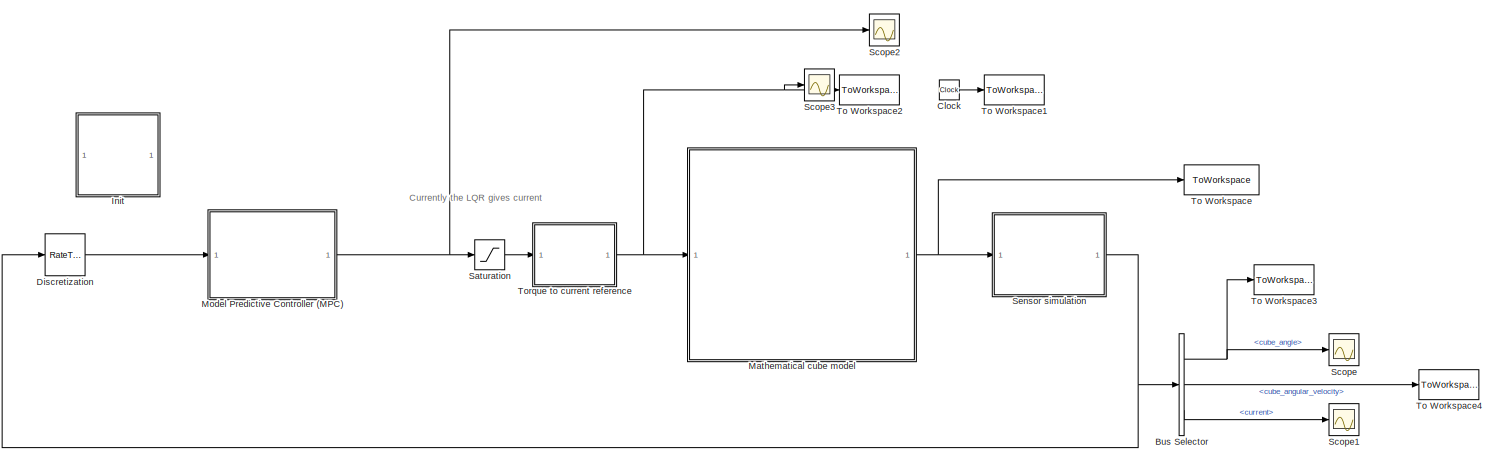
[diagram: root canvas - part 1/2, right side, full height]
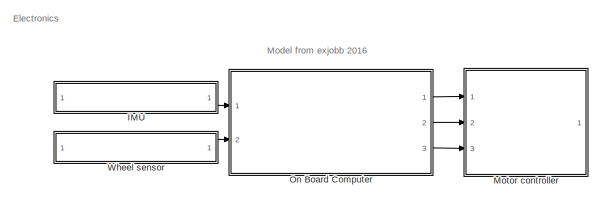
[diagram: root canvas - part 2/2, middle left region]
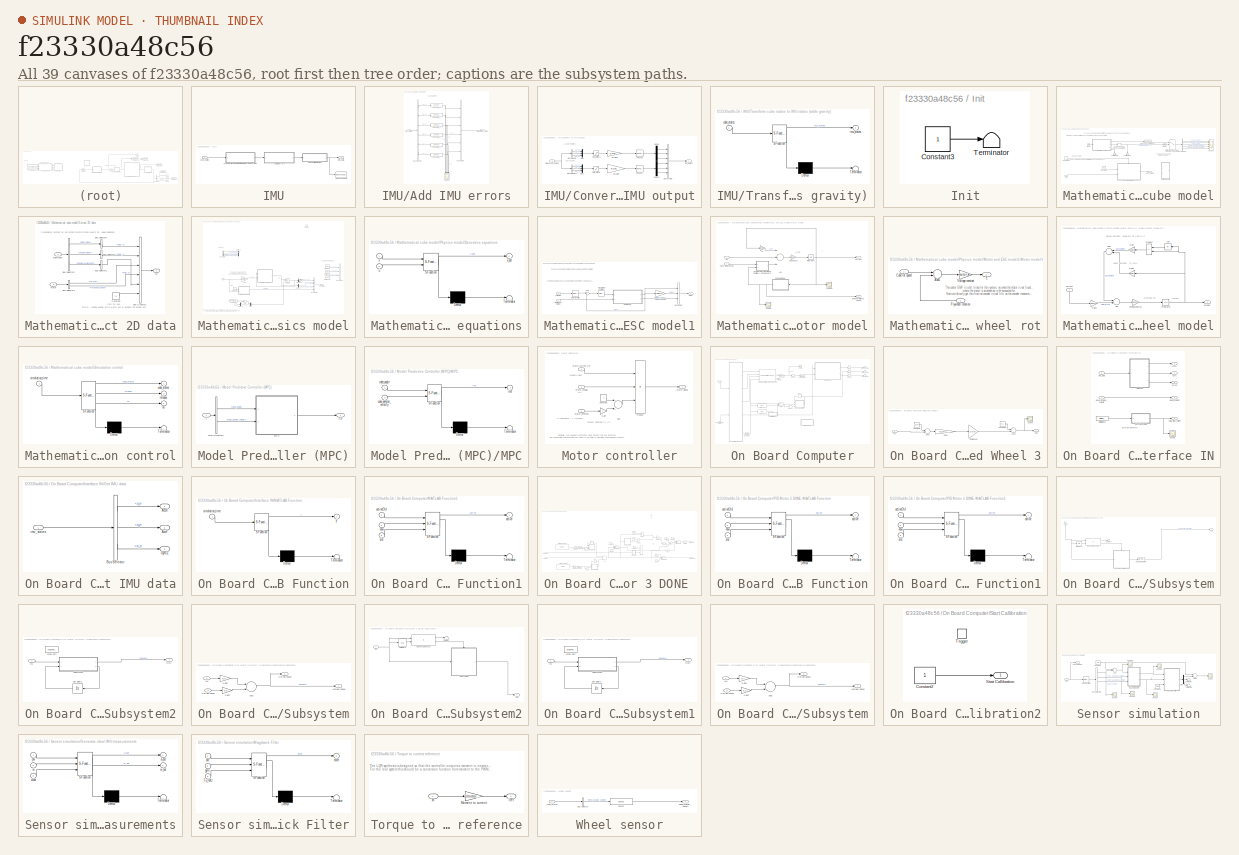
[diagram: thumbnail index - all 39 canvases of the model, root first then tree order]
MODEL slx_f23330a48c56
KIND model
CONFIG AbsTol = auto
CONFIG EnableMultiTasking = on
CONFIG FixedStep = 0.001
CONFIG InitFcn = cubeparameters
CONFIG MaxStep = auto
CONFIG MinStep = auto
CONFIG PreLoadFcn = cubeinit
CONFIG RelTol = 1e-3
CONFIG SampleTimeConstraint = Unconstrained
CONFIG Solver = VariableStepAuto
CONFIG SolverName = VariableStepAuto
CONFIG StartTime = 0.0
CONFIG StopTime = 6
BLOCK [BusSelector] Bus Selector
  OutputSignals = cube_angle,cube_angular_velocity,motorStates.current
  Ports = [1, 3]
BLOCK [Clock] Clock
BLOCK [RateTransition] Discretization 
  OutPortSampleTime = Ts.controller
BLOCK [SubSystem] IMU
  Commented = on
  Ports = [1, 1]
  RequestExecContextInheritance = off
  Variant = off
BLOCK [SubSystem] IMU/Add IMU errors
  Ports = [1, 1]
  RequestExecContextInheritance = off
  Variant = off
BLOCK [BusCreator] IMU/Add IMU errors/Bus Creator
  DisplayOption = bar
  InheritFromInputs = on
  Inputs = 6
  OutDataTypeStr = Bus: ImuStates
  Ports = [6, 1]
BLOCK [BusSelector] IMU/Add IMU errors/Bus Selector
  OutputSignals = a_x,a_y,a_z,w_x,w_y,w_z
  Ports = [1, 6]
BLOCK [Scope] IMU/Add IMU errors/Scope
  NumInputPorts = 6
  Ports = [6]
  ScopeSpecificationString = Simulink.scopes.TimeScopeBlockCfg('CurrentConfiguration', extmgr.ConfigurationSet(extmgr.Configuration('Core','General UI',true),extmgr.Configuration('Core','Source UI',true),extmgr.Configuration('Sources','WiredSimulink',true,'DataLoggingVariableName','ScopeData1'),extmgr.Configuration('Visuals','Time Domain',true,'SerializedDisplays',{struct('MinYLimReal','-20.43904','MaxYLimReal','29.2542','YLa...<+1419ch>
BLOCK [Reference] IMU/Add IMU errors/Sensor a_x  REF=cube_lib/Sensor  (lib defined in slx_d4db5811431f)
  Ports = [1, 1]
  SourceBlock = cube_lib/Sensor
BLOCK [Reference] IMU/Add IMU errors/Sensor a_y  REF=cube_lib/Sensor  (lib defined in slx_d4db5811431f)
  Ports = [1, 1]
  SourceBlock = cube_lib/Sensor
BLOCK [Reference] IMU/Add IMU errors/Sensor a_z  REF=cube_lib/Sensor  (lib defined in slx_d4db5811431f)
  Ports = [1, 1]
  SourceBlock = cube_lib/Sensor
BLOCK [Reference] IMU/Add IMU errors/Sensor w_x  REF=cube_lib/Sensor  (lib defined in slx_d4db5811431f)
  Ports = [1, 1]
  SourceBlock = cube_lib/Sensor
BLOCK [Reference] IMU/Add IMU errors/Sensor w_y  REF=cube_lib/Sensor  (lib defined in slx_d4db5811431f)
  Ports = [1, 1]
  SourceBlock = cube_lib/Sensor
BLOCK [Reference] IMU/Add IMU errors/Sensor w_z  REF=cube_lib/Sensor  (lib defined in slx_d4db5811431f)
  Ports = [1, 1]
  SourceBlock = cube_lib/Sensor
BLOCK [Outport] IMU/Add IMU errors/measured_states
  IconDisplay = Port number
BLOCK [Inport] IMU/Add IMU errors/true_states
  IconDisplay = Port number
BLOCK [SubSystem] IMU/Convert to IMU output
  Ports = [1, 1]
  RequestExecContextInheritance = off
  Variant = off
BLOCK [BusCreator] IMU/Convert to IMU output/Bus Creator
  DisplayOption = bar
  InheritFromInputs = off
  Inputs = 6
  OutDataTypeStr = Bus: ImuStates
  Ports = [6, 1]
BLOCK [BusSelector] IMU/Convert to IMU output/Bus Selector
  OutputSignals = a_x,a_y,a_z
  Ports = [1, 3]
BLOCK [BusSelector] IMU/Convert to IMU output/Bus Selector1
  OutputSignals = w_x,w_y,w_z
  Ports = [1, 3]
BLOCK [Demux] IMU/Convert to IMU output/Demux
  DisplayOption = bar
  Outputs = 3
  Ports = [1, 3]
BLOCK [Demux] IMU/Convert to IMU output/Demux1
  DisplayOption = bar
  Outputs = 3
  Ports = [1, 3]
BLOCK [Mux] IMU/Convert to IMU output/Mux
  DisplayOption = bar
  Inputs = 3
  Ports = [3, 1]
BLOCK [Mux] IMU/Convert to IMU output/Mux1
  DisplayOption = bar
  Inputs = 3
  Ports = [3, 1]
BLOCK [Rounding] IMU/Convert to IMU output/Round a
  Operator = round
BLOCK [Rounding] IMU/Convert to IMU output/Round w
  Operator = round
BLOCK [Saturate] IMU/Convert to IMU output/Saturation a
  InputPortMap = u0
  LowerLimit = -a_max
  Ports = [1, 1]
  UpperLimit = a_max
BLOCK [Saturate] IMU/Convert to IMU output/Saturation w
  InputPortMap = u0
  LowerLimit = -w_max
  Ports = [1, 1]
  UpperLimit = w_max
BLOCK [Gain] IMU/Convert to IMU output/a scaling
  Gain = a_scaling/g
  OutDataTypeStr = Inherit: Inherit via internal rule
  ParamDataTypeStr = Inherit: Inherit via internal rule
  SaturateOnIntegerOverflow = off
BLOCK [Outport] IMU/Convert to IMU output/imu_output
  IconDisplay = Port number
BLOCK [Inport] IMU/Convert to IMU output/measured_output
  IconDisplay = Port number
BLOCK [Gain] IMU/Convert to IMU output/w scaling
  Gain = w_scaling/deg_
  OutDataTypeStr = Inherit: Inherit via internal rule
  ParamDataTypeStr = Inherit: Inherit via internal rule
  SaturateOnIntegerOverflow = off
BLOCK [ToWorkspace] IMU/To Workspace
  FixptAsFi = on
  MaxDataPoints = inf
  Ports = [1]
  SampleTime = -1
  Save2DSignal = 3-D array (concatenate along third dimension)
  SaveFormat = Timeseries
  VariableName = imu_data
BLOCK [SubSystem] IMU/Transform cube states to IMU states (adds gravity)
  ErrorFcn = Stateflow.Translate.translate
  PermitHierarchicalResolution = ExplicitOnly
  Ports = [1, 1]
  RequestExecContextInheritance = off
  SFBlockType = MATLAB Function
  TreatAsAtomicUnit = on
  Variant = off
BLOCK [Demux] IMU/Transform cube states to IMU states (adds gravity)/ Demux 
  Outputs = 1
  Ports = [1, 1]
BLOCK [S-Function] IMU/Transform cube states to IMU states (adds gravity)/ SFunction 
  EnableBusSupport = on
  FunctionName = sf_sfun
  Parameters = imu_intended_alignment,imu_misalignment,r_cube2imu
  PortCounts = [1 2]
  Ports = [1, 2]
  SFcnIsStateOwnerBlock = off
  SFunctionDeploymentMode = off
  Tag = Stateflow S-Function cube_2d_simulation_model_mpc 2
BLOCK [Terminator] IMU/Transform cube states to IMU states (adds gravity)/ Terminator 
BLOCK [Inport] IMU/Transform cube states to IMU states (adds gravity)/cube_states
  IconDisplay = Port number
BLOCK [Outport] IMU/Transform cube states to IMU states (adds gravity)/imu_states
  IconDisplay = Port number
BLOCK [Inport] IMU/cube_states
  IconDisplay = Port number
BLOCK [Outport] IMU/imu_data
  IconDisplay = Port number
BLOCK [SubSystem] Init
  InitFcn = cubeinit
  Ports = []
  RequestExecContextInheritance = off
  Variant = off
BLOCK [Constant] Init/Constant3
BLOCK [Terminator] Init/Terminator
BLOCK [SubSystem] Mathematical cube model
  MinAlgLoopOccurrences = on
  Ports = [1, 1]
  RequestExecContextInheritance = off
  Variant = off
BLOCK [BusSelector] Mathematical cube model/Bus Selector
  Commented = on
  OutputSignals = cube_angle,cube_angular_velocity,motor_current,wheel_angular_velocity,wheel_angular_acceleration
  Ports = [1, 5]
BLOCK [Clock] Mathematical cube model/Clock
  Commented = on
BLOCK [Constant] Mathematical cube model/Constant
  Value = x0
  VectorParams1D = off
BLOCK [Constant] Mathematical cube model/Constant2
BLOCK [Reference] Mathematical cube model/Cube 2D vector to bus1  REF=cube_lib/Cube 2D vector to bus1  (lib defined in slx_d4db5811431f)
  Commented = on
  Ports = [1, 1]
  SourceBlock = cube_lib/Cube 2D vector to bus1
  SourceType = SubSystem
BLOCK [SubSystem] Mathematical cube model/Extract 2D data
  Commented = on
  Ports = [2, 1]
  RequestExecContextInheritance = off
  Variant = off
BLOCK [Outport] Mathematical cube model/Extract 2D data/2D
  IconDisplay = Port number
  OutDataTypeStr = Bus: CubeStates2D
BLOCK [BusCreator] Mathematical cube model/Extract 2D data/Bus Creator1
  DisplayOption = bar
  InheritFromInputs = off
  Inputs = 6
  OutDataTypeStr = Bus: CubeStates2D
  Ports = [6, 1]
BLOCK [BusSelector] Mathematical cube model/Extract 2D data/Bus Selector1
  OutputSignals = euler_x
  Ports = [1, 1]
BLOCK [BusSelector] Mathematical cube model/Extract 2D data/Bus Selector2
  OutputSignals = eulerAngles,angularVelocity,angularAcceleration
  Ports = [1, 3]
BLOCK [BusSelector] Mathematical cube model/Extract 2D data/Bus Selector3
  OutputSignals = current,rotational_speed
  Ports = [1, 2]
BLOCK [BusSelector] Mathematical cube model/Extract 2D data/Bus Selector4
  OutputSignals = euler_x
  Ports = [1, 1]
BLOCK [BusSelector] Mathematical cube model/Extract 2D data/Bus Selector5
  OutputSignals = euler_x
  Ports = [1, 1]
BLOCK [Constant] Mathematical cube model/Extract 2D data/Constant
  Value = 0
BLOCK [Inport] Mathematical cube model/Extract 2D data/motor
  IconDisplay = Port number
  Port = 2
BLOCK [Inport] Mathematical cube model/Extract 2D data/orientation
  IconDisplay = Port number
  OutDataTypeStr = Bus: orientation
BLOCK [Reference] Mathematical cube model/Invert  REF=simulink/Logic and Bit
Operations/Compare
To Constant
  Commented = on
  Ports = [1, 1]
  SourceBlock = simulink/Logic and Bit\nOperations/Compare\nTo Constant
  SourceType = Compare To Constant
BLOCK [Memory] Mathematical cube model/Memory (seems to be needed for x0 to take effect)
  Commented = on
BLOCK [SubSystem] Mathematical cube model/Physics model
  Ports = [2, 1, 1]
  RequestExecContextInheritance = off
  TreatAsAtomicUnit = on
  Variant = off
BLOCK [Sum] Mathematical cube model/Physics model/Add
  InputSameDT = off
  OutDataTypeStr = Inherit: Inherit via internal rule
  Ports = [2, 1]
  SaturateOnIntegerOverflow = off
BLOCK [BusCreator] Mathematical cube model/Physics model/Bus Creator
  Commented = on
  DisplayOption = bar
  InheritFromInputs = on
  Inputs = 4
  OutDataTypeStr = Bus: statevector
  Ports = [4, 1]
BLOCK [BusCreator] Mathematical cube model/Physics model/Bus Creator1
  Commented = on
  DisplayOption = bar
  InheritFromInputs = on
  Inputs = 'eulerAngles','angularVelocity','angularAcceleration'
  OutDataTypeStr = Bus: orientation
  Ports = [3, 1]
BLOCK [BusCreator] Mathematical cube model/Physics model/Bus Creator2
  DisplayOption = bar
  InheritFromInputs = on
  Inputs = 'cube_angle','cube_angular_velocity','cube_angular_acceleration','motorStates'
  OutDataTypeStr = Bus: CubeStates2D
  Ports = [4, 1]
BLOCK [Constant] Mathematical cube model/Physics model/Constant
  Value = 0
BLOCK [Constant] Mathematical cube model/Physics model/Constant1
  Commented = on
  Value = cube.alpha_YZ
BLOCK [Demux] Mathematical cube model/Physics model/Demux
  DisplayOption = bar
  Outputs = 2
  Ports = [1, 2]
BLOCK [Demux] Mathematical cube model/Physics model/Demux1
  Commented = on
  DisplayOption = bar
  Ports = [1, 4]
BLOCK [Demux] Mathematical cube model/Physics model/Demux2
  DisplayOption = bar
  Outputs = 2
  Ports = [1, 2]
BLOCK [Demux] Mathematical cube model/Physics model/Demux3
  DisplayOption = bar
  Outputs = 2
  Ports = [1, 2]
BLOCK [SubSystem] Mathematical cube model/Physics model/Derivative equations
  ErrorFcn = Stateflow.Translate.translate
  PermitHierarchicalResolution = ExplicitOnly
  Ports = [2, 1]
  RequestExecContextInheritance = off
  SFBlockType = MATLAB Function
  Variant = off
BLOCK [Demux] Mathematical cube model/Physics model/Derivative equations/ Demux 
  Outputs = 1
  Ports = [1, 1]
BLOCK [S-Function] Mathematical cube model/Physics model/Derivative equations/ SFunction 
  EnableBusSupport = on
  FunctionName = sf_sfun
  Parameters = cube,motor,wheel
  PortCounts = [2 2]
  Ports = [2, 2]
  SFcnIsStateOwnerBlock = off
  SFunctionDeploymentMode = off
  Tag = Stateflow S-Function cube_2d_simulation_model_mpc 4
BLOCK [Terminator] Mathematical cube model/Physics model/Derivative equations/ Terminator 
BLOCK [Inport] Mathematical cube model/Physics model/Derivative equations/u
  IconDisplay = Port number
  Port = 2
BLOCK [Inport] Mathematical cube model/Physics model/Derivative equations/x
  IconDisplay = Port number
BLOCK [Outport] Mathematical cube model/Physics model/Derivative equations/x_dot
  IconDisplay = Port number
BLOCK [EnablePort] Mathematical cube model/Physics model/Enable
  Ports = []
BLOCK [Reference] Mathematical cube model/Physics model/Euler to bus1  REF=cubex_simulation/Euler to bus  (lib defined in slx_7982b5a22bf7)
  Commented = on
  Ports = [1, 1]
  SourceBlock = cubex_simulation/Euler to bus
  SourceType = SubSystem
BLOCK [Reference] Mathematical cube model/Physics model/Euler to bus2  REF=cubex_simulation/Euler to bus  (lib defined in slx_7982b5a22bf7)
  Commented = on
  Ports = [1, 1]
  SourceBlock = cubex_simulation/Euler to bus
  SourceType = SubSystem
BLOCK [Reference] Mathematical cube model/Physics model/Euler to bus3  REF=cubex_simulation/Euler to bus  (lib defined in slx_7982b5a22bf7)
  Commented = on
  Ports = [1, 1]
  SourceBlock = cubex_simulation/Euler to bus
  SourceType = SubSystem
BLOCK [Gain] Mathematical cube model/Physics model/Gain
  Gain = motor.kt
  OutDataTypeStr = Inherit: Inherit via internal rule
  ParamDataTypeStr = Inherit: Inherit via internal rule
  SaturateOnIntegerOverflow = off
BLOCK [Integrator] Mathematical cube model/Physics model/Integrator
  InitialConditionSource = external
  Ports = [2, 1]
BLOCK [SubSystem] Mathematical cube model/Physics model/Motor and ESC model1
  AncestorBlock = cubex_simulation/Motor and ESC model
  Ports = [2, 1]
  RequestExecContextInheritance = off
  Variant = off
BLOCK [BusCreator] Mathematical cube model/Physics model/Motor and ESC model1/Bus Creator
  DisplayOption = bar
  InheritFromInputs = on
  Inputs = 'current','torque','rotational_speed'
  OutDataTypeStr = Bus: motorStates
  Ports = [3, 1]
BLOCK [Inport] Mathematical cube model/Physics model/Motor and ESC model1/Current ref
  IconDisplay = Port number
  Port = 2
BLOCK [Reference] Mathematical cube model/Physics model/Motor and ESC model1/Discrete PID Controller  REF=simulink/Continuous/PID Controller
  Ports = [1, 1]
  SourceBlock = simulink/Continuous/PID Controller
  SourceType = PID 1dof
BLOCK [SubSystem] Mathematical cube model/Physics model/Motor and ESC model1/Motor model
  Ports = [2, 2]
  RequestExecContextInheritance = off
  Variant = off
BLOCK [Sum] Mathematical cube model/Physics model/Motor and ESC model1/Motor model/Add
  InputSameDT = off
  Inputs = -+-
  OutDataTypeStr = Inherit: Inherit via internal rule
  Ports = [3, 1]
  SaturateOnIntegerOverflow = off
BLOCK [SubSystem] Mathematical cube model/Physics model/Motor and ESC model1/Motor model/Counter EMF- Is function of the difference of the cube rot. and wheel rot
  Ports = [2, 1]
  RequestExecContextInheritance = off
  Variant = off
BLOCK [Sum] Mathematical cube model/Physics model/Motor and ESC model1/Motor model/Counter EMF- Is function of the difference of the cube rot. and wheel rot/Add1
  InputSameDT = off
  Inputs = -+
  OutDataTypeStr = Inherit: Inherit via internal rule
  Ports = [2, 1]
  SaturateOnIntegerOverflow = off
BLOCK [Inport] Mathematical cube model/Physics model/Motor and ESC model1/Motor model/Counter EMF- Is function of the difference of the cube rot. and wheel rot/Cube rot speed
  IconDisplay = Port number
BLOCK [Outport] Mathematical cube model/Physics model/Motor and ESC model1/Motor model/Counter EMF- Is function of the difference of the cube rot. and wheel rot/E
  IconDisplay = Port number
BLOCK [Inport] Mathematical cube model/Physics model/Motor and ESC model1/Motor model/Counter EMF- Is function of the difference of the cube rot. and wheel rot/Flywheel rotation
  IconDisplay = Port number
  Port = 2
BLOCK [Gain] Mathematical cube model/Physics model/Motor and ESC model1/Motor model/Counter EMF- Is function of the difference of the cube rot. and wheel rot/Voltage constant
  Gain = motor.kt
  OutDataTypeStr = Inherit: Inherit via internal rule
  ParamDataTypeStr = Inherit: Inherit via internal rule
  SaturateOnIntegerOverflow = off
BLOCK [Inport] Mathematical cube model/Physics model/Motor and ESC model1/Motor model/Cube rotaion speed
  IconDisplay = Port number
  Port = 2
BLOCK [SubSystem] Mathematical cube model/Physics model/Motor and ESC model1/Motor model/Flywheel model
  Ports = [1, 1]
  RequestExecContextInheritance = off
  Variant = off
BLOCK [Abs] Mathematical cube model/Physics model/Motor and ESC model1/Motor model/Flywheel model/Abs
  SaturateOnIntegerOverflow = off
BLOCK [Sum] Mathematical cube model/Physics model/Motor and ESC model1/Motor model/Flywheel model/Add
  InputSameDT = off
  Inputs = -+
  OutDataTypeStr = Inherit: Inherit via internal rule
  Ports = [2, 1]
  SaturateOnIntegerOverflow = off
BLOCK [Sum] Mathematical cube model/Physics model/Motor and ESC model1/Motor model/Flywheel model/Add1
  InputSameDT = off
  OutDataTypeStr = Inherit: Inherit via internal rule
  Ports = [2, 1]
  SaturateOnIntegerOverflow = off
BLOCK [Inport] Mathematical cube model/Physics model/Motor and ESC model1/Motor model/Flywheel model/Current
  IconDisplay = Port number
BLOCK [Gain] Mathematical cube model/Physics model/Motor and ESC model1/Motor model/Flywheel model/Flywheel inertia
  Gain = 1/wheel.J
  OutDataTypeStr = Inherit: Inherit via internal rule
  ParamDataTypeStr = Inherit: Inherit via internal rule
  SaturateOnIntegerOverflow = off
BLOCK [Gain] Mathematical cube model/Physics model/Motor and ESC model1/Motor model/Flywheel model/Gain
  Gain = wheel.bq
  OutDataTypeStr = Inherit: Inherit via internal rule
  ParamDataTypeStr = Inherit: Inherit via internal rule
  SaturateOnIntegerOverflow = off
BLOCK [Gain] Mathematical cube model/Physics model/Motor and ESC model1/Motor model/Flywheel model/Gain1
  Gain = motor.kt
  OutDataTypeStr = Inherit: Inherit via internal rule
  ParamDataTypeStr = Inherit: Inherit via internal rule
  SaturateOnIntegerOverflow = off
BLOCK [Gain] Mathematical cube model/Physics model/Motor and ESC model1/Motor model/Flywheel model/Gain2
  Gain = wheel.bl
  OutDataTypeStr = Inherit: Inherit via internal rule
  ParamDataTypeStr = Inherit: Inherit via internal rule
  SaturateOnIntegerOverflow = off
BLOCK [Integrator] Mathematical cube model/Physics model/Motor and ESC model1/Motor model/Flywheel model/Integrator
  Ports = [1, 1]
BLOCK [Product] Mathematical cube model/Physics model/Motor and ESC model1/Motor model/Flywheel model/Product
  InputSameDT = off
  OutDataTypeStr = Inherit: Inherit via internal rule
  Ports = [2, 1]
  RndMeth = Floor
  SaturateOnIntegerOverflow = off
BLOCK [Outport] Mathematical cube model/Physics model/Motor and ESC model1/Motor model/Flywheel model/omega
  IconDisplay = Port number
BLOCK [Integrator] Mathematical cube model/Physics model/Motor and ESC model1/Motor model/Integrator1
  Ports = [1, 1]
BLOCK [Gain] Mathematical cube model/Physics model/Motor and ESC model1/Motor model/R
  Gain = motor.R
  OutDataTypeStr = Inherit: Inherit via internal rule
  ParamDataTypeStr = Inherit: Inherit via internal rule
  SaturateOnIntegerOverflow = off
BLOCK [Scope] Mathematical cube model/Physics model/Motor and ESC model1/Motor model/Scope
  NumInputPorts = 1
  Ports = [1]
  ScopeSpecificationString = Simulink.scopes.TimeScopeBlockCfg('CurrentConfiguration', extmgr.ConfigurationSet(extmgr.Configuration('Core','General UI',true),extmgr.Configuration('Core','Source UI',true),extmgr.Configuration('Sources','WiredSimulink',true,'DataLoggingVariableName','ScopeData3'),extmgr.Configuration('Visuals','Time Domain',true,'SerializedDisplays',{struct('MinYLimReal','-128.66525','MaxYLimReal','14.29614','Y...<+1457ch>
BLOCK [Scope] Mathematical cube model/Physics model/Motor and ESC model1/Motor model/Scope1
  NumInputPorts = 1
  Ports = [1]
  ScopeSpecificationString = Simulink.scopes.TimeScopeBlockCfg('CurrentConfiguration', extmgr.ConfigurationSet(extmgr.Configuration('Core','General UI',true),extmgr.Configuration('Core','Source UI',true),extmgr.Configuration('Sources','WiredSimulink',true,'DataLoggingVariableName','ScopeData1'),extmgr.Configuration('Visuals','Time Domain',true,'SerializedDisplays',{struct('MinYLimReal','-128.66525','MaxYLimReal','14.29614','Y...<+1454ch>
BLOCK [Inport] Mathematical cube model/Physics model/Motor and ESC model1/Motor model/Vin
  IconDisplay = Port number
BLOCK [Outport] Mathematical cube model/Physics model/Motor and ESC model1/Motor model/current
  IconDisplay = Port number
BLOCK [Outport] Mathematical cube model/Physics model/Motor and ESC model1/Motor model/flywheel rotational speed
  IconDisplay = Port number
  Port = 2
BLOCK [Gain] Mathematical cube model/Physics model/Motor and ESC model1/Motor model/inductance
  Gain = 1/motor.L
  OutDataTypeStr = Inherit: Inherit via internal rule
  ParamDataTypeStr = Inherit: Inherit via internal rule
  SaturateOnIntegerOverflow = off
BLOCK [RateTransition] Mathematical cube model/Physics model/Motor and ESC model1/Rate Transition
  OutPortSampleTime = 0.001
BLOCK [Outport] Mathematical cube model/Physics model/Motor and ESC model1/States 
  IconDisplay = Port number
  OutDataTypeStr = Bus: motorStates
BLOCK [Inport] Mathematical cube model/Physics model/Motor and ESC model1/Stator (cube) rotation
  IconDisplay = Port number
BLOCK [Sum] Mathematical cube model/Physics model/Motor and ESC model1/Sum
  IconShape = round
  InputSameDT = off
  Inputs = |+-
  OutDataTypeStr = Inherit: Inherit via internal rule
  Ports = [2, 1]
  SaturateOnIntegerOverflow = off
BLOCK [Gain] Mathematical cube model/Physics model/Motor and ESC model1/Torque constant
  Gain = motor.kt
  OutDataTypeStr = Inherit: Inherit via internal rule
  ParamDataTypeStr = Inherit: Inherit via internal rule
  SaturateOnIntegerOverflow = off
BLOCK [Mux] Mathematical cube model/Physics model/Mux
  DisplayOption = bar
  Inputs = 2
  Ports = [2, 1]
BLOCK [Terminator] Mathematical cube model/Physics model/Terminator
BLOCK [Outport] Mathematical cube model/Physics model/cubeStates 
  IconDisplay = Port number
BLOCK [Inport] Mathematical cube model/Physics model/u
  IconDisplay = Port number
  Port = 2
BLOCK [Inport] Mathematical cube model/Physics model/x0 
  IconDisplay = Port number
BLOCK [Scope] Mathematical cube model/Scope1
  Commented = on
  NumInputPorts = 5
  Ports = [5]
  ScopeSpecificationString = Simulink.scopes.TimeScopeBlockCfg('CurrentConfiguration', extmgr.ConfigurationSet(extmgr.Configuration('Core','General UI',true),extmgr.Configuration('Core','Source UI',true),extmgr.Configuration('Sources','WiredSimulink',true,'DataLoggingVariableName','ScopeData2'),extmgr.Configuration('Visuals','Time Domain',true,'SerializedDisplays',{struct('MinYLimReal','-0.98627','MaxYLimReal','2.28953','YLab...<+1547ch>
BLOCK [SubSystem] Mathematical cube model/Simulation control
  Commented = on
  ErrorFcn = Stateflow.Translate.translate
  PermitHierarchicalResolution = ExplicitOnly
  Ports = [1, 3]
  RequestExecContextInheritance = off
  SFBlockType = MATLAB Function
  TreatAsAtomicUnit = on
  Variant = off
BLOCK [Demux] Mathematical cube model/Simulation control/ Demux 
  Outputs = 1
  Ports = [1, 1]
BLOCK [S-Function] Mathematical cube model/Simulation control/ SFunction 
  EnableBusSupport = on
  FunctionName = sf_sfun
  Parameters = cube_start_angle
  PortCounts = [1 4]
  Ports = [1, 4]
  SFcnIsStateOwnerBlock = off
  SFunctionDeploymentMode = off
  Tag = Stateflow S-Function cube_2d_simulation_model_mpc 9
BLOCK [Terminator] Mathematical cube model/Simulation control/ Terminator 
BLOCK [Outport] Mathematical cube model/Simulation control/cube_states
  IconDisplay = Port number
BLOCK [Outport] Mathematical cube model/Simulation control/release
  IconDisplay = Port number
  Port = 2
BLOCK [Inport] Mathematical cube model/Simulation control/simulation_time
  IconDisplay = Port number
BLOCK [Outport] Mathematical cube model/Simulation control/x0
  IconDisplay = Port number
  Port = 3
BLOCK [Switch] Mathematical cube model/Switch - use physical model when release is active
  Commented = on
  Criteria = u2 ~= 0
  InputSameDT = off
  SaturateOnIntegerOverflow = off
BLOCK [Terminator] Mathematical cube model/Terminator1
BLOCK [Terminator] Mathematical cube model/Terminator2
BLOCK [Outport] Mathematical cube model/cube_states
  IconDisplay = Port number
BLOCK [Inport] Mathematical cube model/i_ref
  IconDisplay = Port number
BLOCK [SubSystem] Model Predictive Controller (MPC)
  Ports = [1, 1]
  RequestExecContextInheritance = off
  Variant = off
BLOCK [BusSelector] Model Predictive Controller (MPC)/Bus Selector2
  OutputSignals = cube_angle,cube_angular_velocity
  Ports = [1, 2]
BLOCK [SubSystem] Model Predictive Controller (MPC)/MPC
  ErrorFcn = Stateflow.Translate.translate
  PermitHierarchicalResolution = ExplicitOnly
  Ports = [2, 1]
  RequestExecContextInheritance = off
  SFBlockType = MATLAB Function
  TreatAsAtomicUnit = on
  Variant = off
BLOCK [Demux] Model Predictive Controller (MPC)/MPC/ Demux 
  Outputs = 1
  Ports = [1, 1]
BLOCK [S-Function] Model Predictive Controller (MPC)/MPC/ SFunction 
  EnableBusSupport = on
  FunctionName = sf_sfun
  Parameters = MPC
  PortCounts = [2 2]
  Ports = [2, 2]
  SFcnIsStateOwnerBlock = off
  SFunctionDeploymentMode = off
  Tag = Stateflow S-Function cube_2d_simulation_model_mpc 8
BLOCK [Terminator] Model Predictive Controller (MPC)/MPC/ Terminator 
BLOCK [Inport] Model Predictive Controller (MPC)/MPC/cube_angle
  IconDisplay = Port number
BLOCK [Inport] Model Predictive Controller (MPC)/MPC/cube_angular_velocity
  IconDisplay = Port number
  Port = 2
BLOCK [Outport] Model Predictive Controller (MPC)/MPC/iref
  IconDisplay = Port number
BLOCK [Outport] Model Predictive Controller (MPC)/iref
  IconDisplay = Port number
BLOCK [Inport] Model Predictive Controller (MPC)/x
  IconDisplay = Port number
BLOCK [SubSystem] Motor controller
  Commented = on
  Ports = [3, 1]
  RequestExecContextInheritance = off
  Variant = off
BLOCK [Sum] Motor controller/Add
  InputSameDT = off
  OutDataTypeStr = Inherit: Inherit via internal rule
  Ports = [2, 1]
  SaturateOnIntegerOverflow = off
BLOCK [Constant] Motor controller/Constant
  Value = -1
BLOCK [Gain] Motor controller/Gain
  Gain = 2
  OutDataTypeStr = Inherit: Inherit via internal rule
  ParamDataTypeStr = Inherit: Inherit via internal rule
  SaturateOnIntegerOverflow = off
BLOCK [Product] Motor controller/Product
  InputSameDT = off
  Inputs = 3
  OutDataTypeStr = Inherit: Inherit via internal rule
  Ports = [3, 1]
  RndMeth = Floor
  SaturateOnIntegerOverflow = off
BLOCK [Inport] Motor controller/motor_current_ref
  IconDisplay = Port number
BLOCK [Inport] Motor controller/motor_direction
  IconDisplay = Port number
  Port = 3
BLOCK [Inport] Motor controller/motor_enable
  IconDisplay = Port number
  Port = 2
BLOCK [Outport] Motor controller/motor_signal
  IconDisplay = Port number
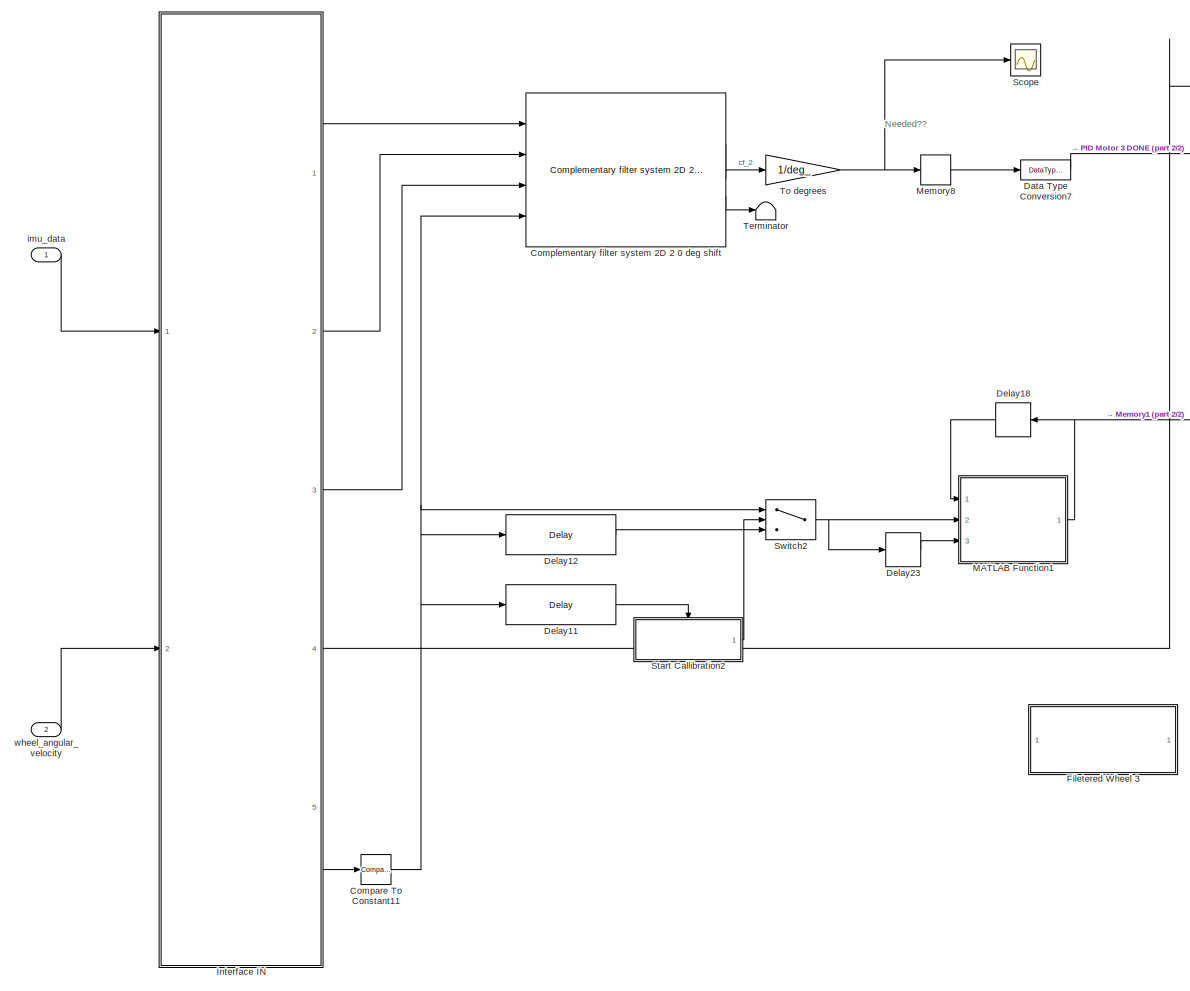
[diagram: On Board Computer - part 1/2, left side, full height]
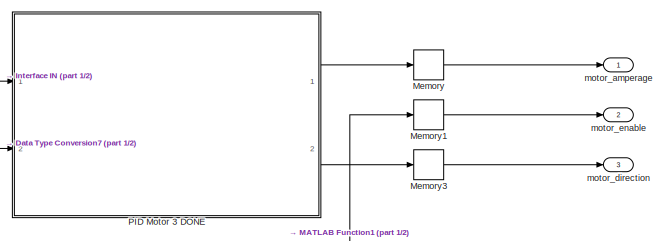
[diagram: On Board Computer - part 2/2, top right region]
BLOCK [SubSystem] On Board Computer
  Commented = on
  Ports = [2, 3]
  RequestExecContextInheritance = off
  Variant = off
BLOCK [Reference] On Board Computer/Compare To Constant11  REF=simulink/Logic and Bit
Operations/Compare
To Constant
  Ports = [1, 1]
  SourceBlock = simulink/Logic and Bit\nOperations/Compare\nTo Constant
  SourceType = Compare To Constant
BLOCK [Reference] On Board Computer/Complementary filter system 2D 2 0 deg shift  REF=cube_lib/Complementary filter system 2D 2 0 deg shift  (lib defined in slx_d4db5811431f)
  Ports = [4, 2]
  SourceBlock = cube_lib/Complementary filter system 2D 2 0 deg shift
  SourceType = SubSystem
BLOCK [DataTypeConversion] On Board Computer/Data Type Conversion7
  RndMeth = Floor
  SaturateOnIntegerOverflow = off
BLOCK [Delay] On Board Computer/Delay11
  DelayLength = 1010
  InitialCondition = 0
  InputPortMap = u0
  Ports = [1, 1]
BLOCK [Delay] On Board Computer/Delay12
  DelayLength = 1000
  InitialCondition = 0
  InputPortMap = u0
  Ports = [1, 1]
BLOCK [Delay] On Board Computer/Delay18
  DelayLength = 1
  InitialCondition = 0
  InputPortMap = u0
  Ports = [1, 1]
BLOCK [Delay] On Board Computer/Delay23
  DelayLength = 1
  InitialCondition = 0
  InputPortMap = u0
  Ports = [1, 1]
BLOCK [SubSystem] On Board Computer/Filetered Wheel 3
  Commented = on
  Ports = [1, 1]
  RequestExecContextInheritance = off
  Variant = off
BLOCK [Sum] On Board Computer/Filetered Wheel 3/Add3
  InputSameDT = off
  Inputs = -+
  OutDataTypeStr = Inherit: Inherit via internal rule
  Ports = [2, 1]
  SaturateOnIntegerOverflow = off
BLOCK [Sum] On Board Computer/Filetered Wheel 3/Add9
  InputSameDT = off
  Inputs = -+
  OutDataTypeStr = Inherit: Inherit via internal rule
  Ports = [2, 1]
  SaturateOnIntegerOverflow = off
BLOCK [Constant] On Board Computer/Filetered Wheel 3/Constant1
  SampleTime = -1
  Value = 2094
BLOCK [Constant] On Board Computer/Filetered Wheel 3/Constant15
  SampleTime = -1
  Value = 69
BLOCK [Gain] On Board Computer/Filetered Wheel 3/Gain2
  Gain = (6110*2)/4096
  OutDataTypeStr = Inherit: Inherit via internal rule
  ParamDataTypeStr = Inherit: Inherit via internal rule
  SaturateOnIntegerOverflow = off
BLOCK [Inport] On Board Computer/Filetered Wheel 3/In1
  IconDisplay = Port number
BLOCK [Outport] On Board Computer/Filetered Wheel 3/Out1
  IconDisplay = Port number
BLOCK [Gain] On Board Computer/Filetered Wheel 3/RPM to RAD3
  Gain = 1/9.55
  OutDataTypeStr = Inherit: Inherit via internal rule
  ParamDataTypeStr = Inherit: Inherit via internal rule
  SaturateOnIntegerOverflow = off
BLOCK [Scope] On Board Computer/Filetered Wheel 3/Scope
  NumInputPorts = 1
  Ports = [1]
  ScopeSpecificationString = Simulink.scopes.TimeScopeBlockCfg('CurrentConfiguration', extmgr.ConfigurationSet(extmgr.Configuration('Core','General UI',true),extmgr.Configuration('Core','Source UI',true),extmgr.Configuration('Sources','WiredSimulink',true,'DataLoggingVariableName','ScopeData5'),extmgr.Configuration('Visuals','Time Domain',true,'SerializedDisplays',{struct('MinYLimReal','-340.12219','MaxYLimReal','-190.56177',...<+1451ch>
BLOCK [SubSystem] On Board Computer/Interface IN
  Ports = [2, 5]
  RequestExecContextInheritance = off
  Variant = off
BLOCK [Outport] On Board Computer/Interface IN/AccX
  IconDisplay = Port number
BLOCK [Outport] On Board Computer/Interface IN/AccY 
  IconDisplay = Port number
  Port = 2
BLOCK [DigitalClock] On Board Computer/Interface IN/Digital Clock
  SampleTime = T_onboard
BLOCK [SubSystem] On Board Computer/Interface IN/Get IMU data
  Ports = [1, 3]
  RequestExecContextInheritance = off
  Variant = off
BLOCK [Outport] On Board Computer/Interface IN/Get IMU data/AccX
  IconDisplay = Port number
BLOCK [Outport] On Board Computer/Interface IN/Get IMU data/AccY 
  IconDisplay = Port number
  Port = 2
BLOCK [BusSelector] On Board Computer/Interface IN/Get IMU data/Bus Selector
  OutputSignals = a_x,a_y,w_z
  Ports = [1, 3]
BLOCK [Outport] On Board Computer/Interface IN/Get IMU data/GyroZ
  IconDisplay = Port number
  Port = 3
BLOCK [Inport] On Board Computer/Interface IN/Get IMU data/imu_states
  IconDisplay = Port number
BLOCK [Outport] On Board Computer/Interface IN/GyroZ
  IconDisplay = Port number
  Port = 3
BLOCK [SubSystem] On Board Computer/Interface IN/MATLAB Function
  ErrorFcn = Stateflow.Translate.translate
  PermitHierarchicalResolution = ExplicitOnly
  Ports = [1, 1]
  RequestExecContextInheritance = off
  SFBlockType = MATLAB Function
  TreatAsAtomicUnit = on
  Variant = off
BLOCK [Demux] On Board Computer/Interface IN/MATLAB Function/ Demux 
  Outputs = 1
  Ports = [1, 1]
BLOCK [S-Function] On Board Computer/Interface IN/MATLAB Function/ SFunction 
  EnableBusSupport = on
  FunctionName = sf_sfun
  PortCounts = [1 2]
  Ports = [1, 2]
  SFcnIsStateOwnerBlock = off
  SFunctionDeploymentMode = off
  Tag = Stateflow S-Function cube_2d_simulation_model_mpc 14
BLOCK [Terminator] On Board Computer/Interface IN/MATLAB Function/ Terminator 
BLOCK [Inport] On Board Computer/Interface IN/MATLAB Function/simulation_time
  IconDisplay = Port number
BLOCK [Outport] On Board Computer/Interface IN/MATLAB Function/y
  IconDisplay = Port number
BLOCK [Scope] On Board Computer/Interface IN/Scope
  NumInputPorts = 1
  Ports = [1]
  ScopeSpecificationString = Simulink.scopes.TimeScopeBlockCfg('CurrentConfiguration', extmgr.ConfigurationSet(extmgr.Configuration('Core','General UI',true),extmgr.Configuration('Core','Source UI',true),extmgr.Configuration('Sources','WiredSimulink',true,'DataLoggingVariableName','ScopeData6'),extmgr.Configuration('Visuals','Time Domain',true,'SerializedDisplays',{struct('MinYLimReal','-0.02744','MaxYLimReal','1.03917','YLab...<+1393ch>
BLOCK [Outport] On Board Computer/Interface IN/calibration_button
  IconDisplay = Port number
  Port = 5
BLOCK [Inport] On Board Computer/Interface IN/imu_data
  IconDisplay = Port number
BLOCK [Inport] On Board Computer/Interface IN/wheel_angular_velocity
  IconDisplay = Port number
  Port = 2
BLOCK [Outport] On Board Computer/Interface IN/wheel_velocity
  IconDisplay = Port number
  Port = 4
BLOCK [SubSystem] On Board Computer/MATLAB Function1
  ErrorFcn = Stateflow.Translate.translate
  PermitHierarchicalResolution = ExplicitOnly
  Ports = [3, 1]
  RequestExecContextInheritance = off
  SFBlockType = MATLAB Function
  TreatAsAtomicUnit = on
  Variant = off
BLOCK [Demux] On Board Computer/MATLAB Function1/ Demux 
  Outputs = 1
  Ports = [1, 1]
BLOCK [S-Function] On Board Computer/MATLAB Function1/ SFunction 
  EnableBusSupport = on
  FunctionName = sf_sfun
  PortCounts = [3 2]
  Ports = [3, 2]
  SFcnIsStateOwnerBlock = off
  SFunctionDeploymentMode = off
  Tag = Stateflow S-Function cube_2d_simulation_model_mpc 17
BLOCK [Terminator] On Board Computer/MATLAB Function1/ Terminator 
BLOCK [Outport] On Board Computer/MATLAB Function1/active
  IconDisplay = Port number
BLOCK [Inport] On Board Computer/MATLAB Function1/activeOld
  IconDisplay = Port number
BLOCK [Inport] On Board Computer/MATLAB Function1/new
  IconDisplay = Port number
  Port = 2
BLOCK [Inport] On Board Computer/MATLAB Function1/old
  IconDisplay = Port number
  Port = 3
BLOCK [Memory] On Board Computer/Memory
  InheritSampleTime = on
BLOCK [Memory] On Board Computer/Memory1
  InheritSampleTime = on
BLOCK [Memory] On Board Computer/Memory3
  InheritSampleTime = on
BLOCK [Memory] On Board Computer/Memory8
  InheritSampleTime = on
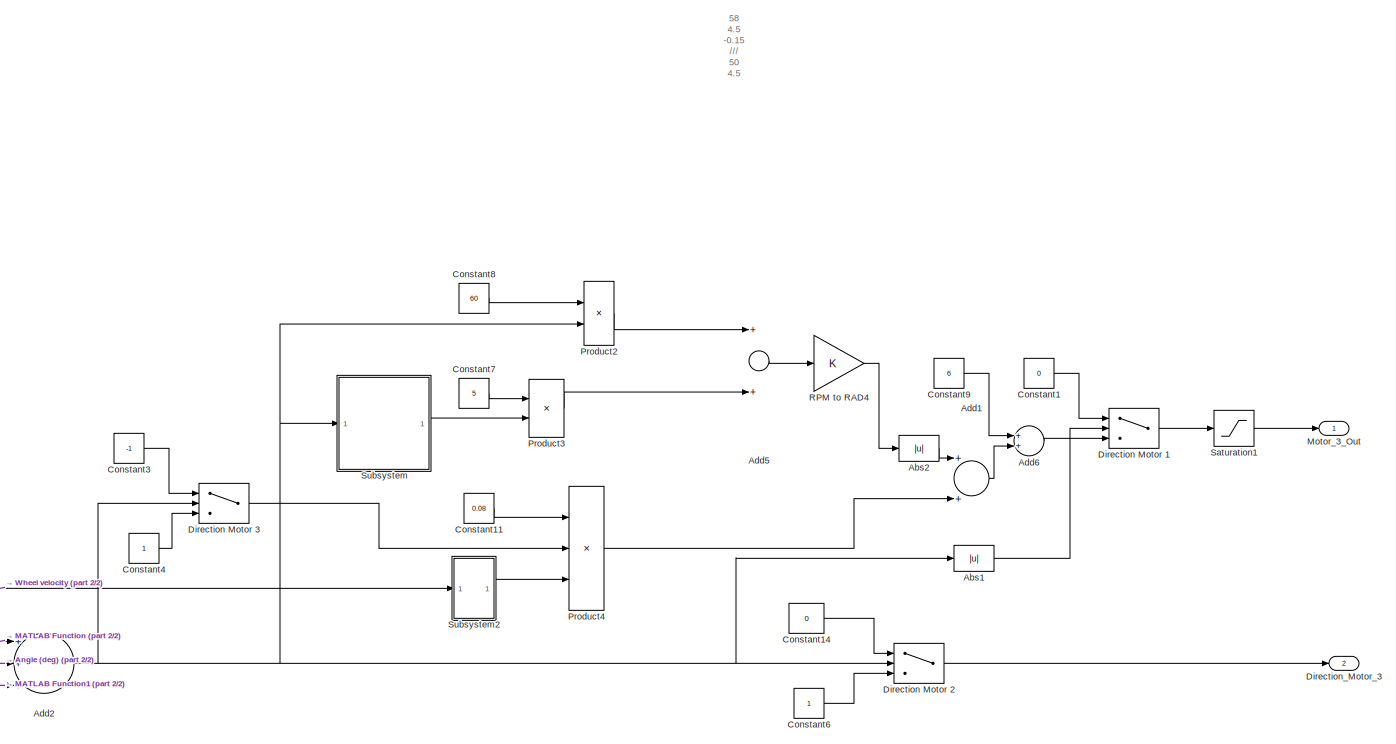
[diagram: On Board Computer/PID Motor 3 DONE  - part 1/2, right side, full height]
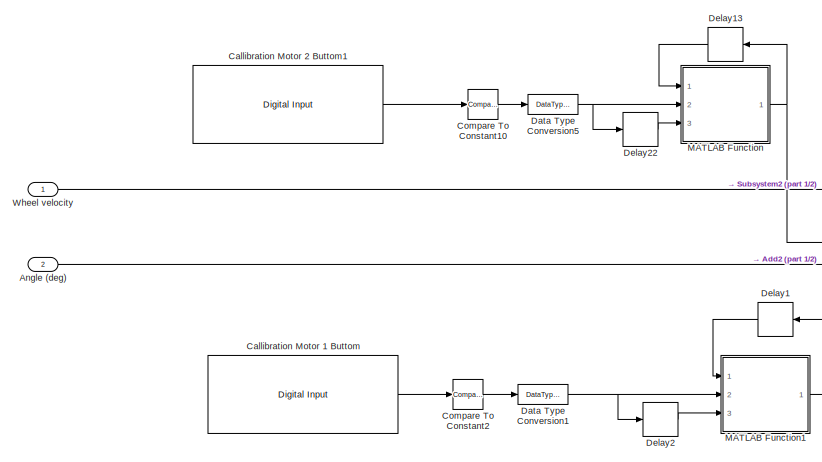
[diagram: On Board Computer/PID Motor 3 DONE  - part 2/2, bottom left region]
BLOCK [SubSystem] On Board Computer/PID Motor 3 DONE 
  Ports = [2, 2]
  RequestExecContextInheritance = off
  Variant = off
BLOCK [Abs] On Board Computer/PID Motor 3 DONE /Abs1
  SaturateOnIntegerOverflow = off
BLOCK [Abs] On Board Computer/PID Motor 3 DONE /Abs2
  SaturateOnIntegerOverflow = off
BLOCK [Sum] On Board Computer/PID Motor 3 DONE /Add1
  InputSameDT = off
  OutDataTypeStr = Inherit: Inherit via internal rule
  Ports = [2, 1]
  SaturateOnIntegerOverflow = off
BLOCK [Sum] On Board Computer/PID Motor 3 DONE /Add2
  InputSameDT = off
  Inputs = +++
  OutDataTypeStr = Inherit: Inherit via internal rule
  Ports = [3, 1]
  SaturateOnIntegerOverflow = off
BLOCK [Sum] On Board Computer/PID Motor 3 DONE /Add5
  InputSameDT = off
  OutDataTypeStr = Inherit: Inherit via internal rule
  Ports = [2, 1]
  SaturateOnIntegerOverflow = off
BLOCK [Sum] On Board Computer/PID Motor 3 DONE /Add6
  InputSameDT = off
  OutDataTypeStr = Inherit: Inherit via internal rule
  Ports = [2, 1]
  SaturateOnIntegerOverflow = off
BLOCK [Inport] On Board Computer/PID Motor 3 DONE /Angle (deg)
  IconDisplay = Port number
  Port = 2
BLOCK [Reference] On Board Computer/PID Motor 3 DONE /Callibration Motor 1 Buttom  REF=stm32f4_io_lib/Digital Input
  Commented = on
  Ports = [0, 1]
  SourceBlock = stm32f4_io_lib/Digital Input
  SourceType = stm32f4_digital_input
BLOCK [Reference] On Board Computer/PID Motor 3 DONE /Callibration Motor 2 Buttom1  REF=stm32f4_io_lib/Digital Input
  Commented = on
  Ports = [0, 1]
  SourceBlock = stm32f4_io_lib/Digital Input
  SourceType = stm32f4_digital_input
BLOCK [Reference] On Board Computer/PID Motor 3 DONE /Compare To Constant10  REF=simulink/Logic and Bit
Operations/Compare
To Constant
  Ports = [1, 1]
  SourceBlock = simulink/Logic and Bit\nOperations/Compare\nTo Constant
  SourceType = Compare To Constant
BLOCK [Reference] On Board Computer/PID Motor 3 DONE /Compare To Constant2  REF=simulink/Logic and Bit
Operations/Compare
To Constant
  Ports = [1, 1]
  SourceBlock = simulink/Logic and Bit\nOperations/Compare\nTo Constant
  SourceType = Compare To Constant
BLOCK [Constant] On Board Computer/PID Motor 3 DONE /Constant1
  OutDataTypeStr = single
  SampleTime = -1
  Value = 0
BLOCK [Constant] On Board Computer/PID Motor 3 DONE /Constant11
  OutDataTypeStr = single
  SampleTime = -1
  Value = 0.08
BLOCK [Constant] On Board Computer/PID Motor 3 DONE /Constant14
  OutDataTypeStr = single
  SampleTime = -1
  Value = 0
BLOCK [Constant] On Board Computer/PID Motor 3 DONE /Constant3
  OutDataTypeStr = single
  SampleTime = -1
  Value = -1
BLOCK [Constant] On Board Computer/PID Motor 3 DONE /Constant4
  OutDataTypeStr = single
  SampleTime = -1
BLOCK [Constant] On Board Computer/PID Motor 3 DONE /Constant6
  OutDataTypeStr = single
  SampleTime = -1
BLOCK [Constant] On Board Computer/PID Motor 3 DONE /Constant7
  OutDataTypeStr = single
  SampleTime = -1
  Value = 5
BLOCK [Constant] On Board Computer/PID Motor 3 DONE /Constant8
  OutDataTypeStr = single
  SampleTime = -1
  Value = 60
BLOCK [Constant] On Board Computer/PID Motor 3 DONE /Constant9
  SampleTime = -1
  Value = 6
BLOCK [DataTypeConversion] On Board Computer/PID Motor 3 DONE /Data Type Conversion1
  OutDataTypeStr = single
  RndMeth = Floor
  SaturateOnIntegerOverflow = off
BLOCK [DataTypeConversion] On Board Computer/PID Motor 3 DONE /Data Type Conversion5
  OutDataTypeStr = single
  RndMeth = Floor
  SaturateOnIntegerOverflow = off
BLOCK [Delay] On Board Computer/PID Motor 3 DONE /Delay1
  DelayLength = 1
  InitialCondition = 0
  InputPortMap = u0
  Ports = [1, 1]
BLOCK [Delay] On Board Computer/PID Motor 3 DONE /Delay13
  DelayLength = 1
  InitialCondition = 0
  InputPortMap = u0
  Ports = [1, 1]
BLOCK [Delay] On Board Computer/PID Motor 3 DONE /Delay2
  DelayLength = 1
  InitialCondition = 0
  InputPortMap = u0
  Ports = [1, 1]
BLOCK [Delay] On Board Computer/PID Motor 3 DONE /Delay22
  DelayLength = 1
  InitialCondition = 0
  InputPortMap = u0
  Ports = [1, 1]
BLOCK [Switch] On Board Computer/PID Motor 3 DONE /Direction Motor 1
  Criteria = u2 > Threshold
  InputSameDT = off
  SaturateOnIntegerOverflow = off
  Threshold = 6
BLOCK [Switch] On Board Computer/PID Motor 3 DONE /Direction Motor 2
  InputSameDT = off
  SaturateOnIntegerOverflow = off
BLOCK [Switch] On Board Computer/PID Motor 3 DONE /Direction Motor 3
  Criteria = u2 > Threshold
  InputSameDT = off
  SaturateOnIntegerOverflow = off
BLOCK [Outport] On Board Computer/PID Motor 3 DONE /Direction_Motor_3 
  IconDisplay = Port number
  Port = 2
BLOCK [SubSystem] On Board Computer/PID Motor 3 DONE /MATLAB Function
  ErrorFcn = Stateflow.Translate.translate
  PermitHierarchicalResolution = ExplicitOnly
  Ports = [3, 1]
  RequestExecContextInheritance = off
  SFBlockType = MATLAB Function
  TreatAsAtomicUnit = on
  Variant = off
BLOCK [Demux] On Board Computer/PID Motor 3 DONE /MATLAB Function/ Demux 
  Outputs = 1
  Ports = [1, 1]
BLOCK [S-Function] On Board Computer/PID Motor 3 DONE /MATLAB Function/ SFunction 
  EnableBusSupport = on
  FunctionName = sf_sfun
  PortCounts = [3 2]
  Ports = [3, 2]
  SFcnIsStateOwnerBlock = off
  SFunctionDeploymentMode = off
  Tag = Stateflow S-Function cube_2d_simulation_model_mpc 1
BLOCK [Terminator] On Board Computer/PID Motor 3 DONE /MATLAB Function/ Terminator 
BLOCK [Outport] On Board Computer/PID Motor 3 DONE /MATLAB Function/active
  IconDisplay = Port number
BLOCK [Inport] On Board Computer/PID Motor 3 DONE /MATLAB Function/activeOld
  IconDisplay = Port number
BLOCK [Inport] On Board Computer/PID Motor 3 DONE /MATLAB Function/new
  IconDisplay = Port number
  Port = 2
BLOCK [Inport] On Board Computer/PID Motor 3 DONE /MATLAB Function/old
  IconDisplay = Port number
  Port = 3
BLOCK [SubSystem] On Board Computer/PID Motor 3 DONE /MATLAB Function1
  ErrorFcn = Stateflow.Translate.translate
  PermitHierarchicalResolution = ExplicitOnly
  Ports = [3, 1]
  RequestExecContextInheritance = off
  SFBlockType = MATLAB Function
  TreatAsAtomicUnit = on
  Variant = off
BLOCK [Demux] On Board Computer/PID Motor 3 DONE /MATLAB Function1/ Demux 
  Outputs = 1
  Ports = [1, 1]
BLOCK [S-Function] On Board Computer/PID Motor 3 DONE /MATLAB Function1/ SFunction 
  EnableBusSupport = on
  FunctionName = sf_sfun
  PortCounts = [3 2]
  Ports = [3, 2]
  SFcnIsStateOwnerBlock = off
  SFunctionDeploymentMode = off
  Tag = Stateflow S-Function cube_2d_simulation_model_mpc 3
BLOCK [Terminator] On Board Computer/PID Motor 3 DONE /MATLAB Function1/ Terminator 
BLOCK [Outport] On Board Computer/PID Motor 3 DONE /MATLAB Function1/active
  IconDisplay = Port number
BLOCK [Inport] On Board Computer/PID Motor 3 DONE /MATLAB Function1/activeOld
  IconDisplay = Port number
BLOCK [Inport] On Board Computer/PID Motor 3 DONE /MATLAB Function1/new
  IconDisplay = Port number
  Port = 2
BLOCK [Inport] On Board Computer/PID Motor 3 DONE /MATLAB Function1/old
  IconDisplay = Port number
  Port = 3
BLOCK [Outport] On Board Computer/PID Motor 3 DONE /Motor_3_Out
  IconDisplay = Port number
BLOCK [Product] On Board Computer/PID Motor 3 DONE /Product2
  InputSameDT = off
  OutDataTypeStr = Inherit: Inherit via internal rule
  Ports = [2, 1]
  RndMeth = Floor
  SaturateOnIntegerOverflow = off
BLOCK [Product] On Board Computer/PID Motor 3 DONE /Product3
  InputSameDT = off
  OutDataTypeStr = Inherit: Inherit via internal rule
  Ports = [2, 1]
  RndMeth = Floor
  SaturateOnIntegerOverflow = off
BLOCK [Product] On Board Computer/PID Motor 3 DONE /Product4
  InputSameDT = off
  Inputs = 3
  OutDataTypeStr = Inherit: Inherit via internal rule
  Ports = [3, 1]
  RndMeth = Floor
  SaturateOnIntegerOverflow = off
BLOCK [Gain] On Board Computer/PID Motor 3 DONE /RPM to RAD4
  OutDataTypeStr = Inherit: Inherit via internal rule
  ParamDataTypeStr = Inherit: Inherit via internal rule
  SaturateOnIntegerOverflow = off
BLOCK [Saturate] On Board Computer/PID Motor 3 DONE /Saturation1
  InputPortMap = u0
  LowerLimit = 10
  Ports = [1, 1]
  UpperLimit = 90
BLOCK [SubSystem] On Board Computer/PID Motor 3 DONE /Subsystem
  Ports = [1, 1]
  RequestExecContextInheritance = off
  Variant = off
BLOCK [Terminator] On Board Computer/PID Motor 3 DONE /Subsystem/DUMMY7
BLOCK [Reference] On Board Computer/PID Motor 3 DONE /Subsystem/Discrete Derivative  REF=simulink/Discrete/Discrete Derivative
  Ports = [1, 1]
  SourceBlock = simulink/Discrete/Discrete Derivative
  SourceType = Discrete Derivative
BLOCK [If] On Board Computer/PID Motor 3 DONE /Subsystem/Do average zero2
  IfExpression = u1 == u2
  NumInputs = 2
  Ports = [2, 2]
BLOCK [Inport] On Board Computer/PID Motor 3 DONE /Subsystem/In1
  IconDisplay = Port number
BLOCK [Outport] On Board Computer/PID Motor 3 DONE /Subsystem/Out1
  IconDisplay = Port number
BLOCK [SubSystem] On Board Computer/PID Motor 3 DONE /Subsystem/Subsystem2
  Ports = [1, 1, 0, 0, 0, 0, 0, 1]
  RequestExecContextInheritance = off
  Variant = off
BLOCK [ActionPort] On Board Computer/PID Motor 3 DONE /Subsystem/Subsystem2/Action Port
  ActionType = else
BLOCK [Inport] On Board Computer/PID Motor 3 DONE /Subsystem/Subsystem2/In1
  IconDisplay = Port number
BLOCK [Outport] On Board Computer/PID Motor 3 DONE /Subsystem/Subsystem2/Out1
  IconDisplay = Port number
BLOCK [SubSystem] On Board Computer/PID Motor 3 DONE /Subsystem/Subsystem2/Subsystem
  Ports = [2, 2]
  RequestExecContextInheritance = off
  Variant = off
BLOCK [Sum] On Board Computer/PID Motor 3 DONE /Subsystem/Subsystem2/Subsystem/Add2
  InputSameDT = off
  OutDataTypeStr = Inherit: Inherit via internal rule
  Ports = [2, 1]
  SaturateOnIntegerOverflow = off
BLOCK [Outport] On Board Computer/PID Motor 3 DONE /Subsystem/Subsystem2/Subsystem/Average Speed
  IconDisplay = Port number
BLOCK [Gain] On Board Computer/PID Motor 3 DONE /Subsystem/Subsystem2/Subsystem/Gain2
  Gain = 0.5
  OutDataTypeStr = Inherit: Inherit via internal rule
  ParamDataTypeStr = Inherit: Inherit via internal rule
  SaturateOnIntegerOverflow = off
BLOCK [Gain] On Board Computer/PID Motor 3 DONE /Subsystem/Subsystem2/Subsystem/Gain3
  Gain = 0.5
  OutDataTypeStr = Inherit: Inherit via internal rule
  ParamDataTypeStr = Inherit: Inherit via internal rule
  SaturateOnIntegerOverflow = off
BLOCK [Inport] On Board Computer/PID Motor 3 DONE /Subsystem/Subsystem2/Subsystem/In1
  IconDisplay = Port number
BLOCK [Outport] On Board Computer/PID Motor 3 DONE /Subsystem/Subsystem2/Subsystem/One old Speed
  IconDisplay = Port number
  Port = 2
BLOCK [Inport] On Board Computer/PID Motor 3 DONE /Subsystem/Subsystem2/Subsystem/One old speed
  IconDisplay = Port number
  Port = 2
BLOCK [UnitDelay] On Board Computer/PID Motor 3 DONE /Subsystem/Subsystem2/Unit Delay1
  InputProcessing = Elements as channels (sample based)
  SampleTime = -1
BLOCK [UnitDelay] On Board Computer/PID Motor 3 DONE /Subsystem/Unit Delay1
  InputProcessing = Elements as channels (sample based)
  SampleTime = -1
BLOCK [SubSystem] On Board Computer/PID Motor 3 DONE /Subsystem2
  Ports = [1, 1]
  RequestExecContextInheritance = off
  Variant = off
BLOCK [Terminator] On Board Computer/PID Motor 3 DONE /Subsystem2/DUMMY7
BLOCK [If] On Board Computer/PID Motor 3 DONE /Subsystem2/Do average zero1
  IfExpression = u1 == u2
  NumInputs = 2
  Ports = [2, 2]
BLOCK [Inport] On Board Computer/PID Motor 3 DONE /Subsystem2/In1
  IconDisplay = Port number
BLOCK [Outport] On Board Computer/PID Motor 3 DONE /Subsystem2/Out2
  IconDisplay = Port number
BLOCK [SubSystem] On Board Computer/PID Motor 3 DONE /Subsystem2/Subsystem1
  Ports = [1, 1, 0, 0, 0, 0, 0, 1]
  RequestExecContextInheritance = off
  Variant = off
BLOCK [ActionPort] On Board Computer/PID Motor 3 DONE /Subsystem2/Subsystem1/Action Port
  ActionType = else
BLOCK [Inport] On Board Computer/PID Motor 3 DONE /Subsystem2/Subsystem1/In1
  IconDisplay = Port number
BLOCK [Outport] On Board Computer/PID Motor 3 DONE /Subsystem2/Subsystem1/Out1
  IconDisplay = Port number
BLOCK [SubSystem] On Board Computer/PID Motor 3 DONE /Subsystem2/Subsystem1/Subsystem
  Ports = [2, 2]
  RequestExecContextInheritance = off
  Variant = off
BLOCK [Sum] On Board Computer/PID Motor 3 DONE /Subsystem2/Subsystem1/Subsystem/Add2
  InputSameDT = off
  OutDataTypeStr = Inherit: Inherit via internal rule
  Ports = [2, 1]
  SaturateOnIntegerOverflow = off
BLOCK [Outport] On Board Computer/PID Motor 3 DONE /Subsystem2/Subsystem1/Subsystem/Average Speed
  IconDisplay = Port number
BLOCK [Gain] On Board Computer/PID Motor 3 DONE /Subsystem2/Subsystem1/Subsystem/Gain2
  Gain = 0.3
  OutDataTypeStr = Inherit: Inherit via internal rule
  ParamDataTypeStr = Inherit: Inherit via internal rule
  SaturateOnIntegerOverflow = off
BLOCK [Gain] On Board Computer/PID Motor 3 DONE /Subsystem2/Subsystem1/Subsystem/Gain3
  Gain = 0.7
  OutDataTypeStr = Inherit: Inherit via internal rule
  ParamDataTypeStr = Inherit: Inherit via internal rule
  SaturateOnIntegerOverflow = off
BLOCK [Inport] On Board Computer/PID Motor 3 DONE /Subsystem2/Subsystem1/Subsystem/In1
  IconDisplay = Port number
BLOCK [Outport] On Board Computer/PID Motor 3 DONE /Subsystem2/Subsystem1/Subsystem/One old Speed
  IconDisplay = Port number
  Port = 2
BLOCK [Inport] On Board Computer/PID Motor 3 DONE /Subsystem2/Subsystem1/Subsystem/One old speed
  IconDisplay = Port number
  Port = 2
BLOCK [UnitDelay] On Board Computer/PID Motor 3 DONE /Subsystem2/Subsystem1/Unit Delay1
  InputProcessing = Elements as channels (sample based)
  SampleTime = -1
BLOCK [UnitDelay] On Board Computer/PID Motor 3 DONE /Subsystem2/Unit Delay3
  InputProcessing = Elements as channels (sample based)
  SampleTime = -1
BLOCK [Inport] On Board Computer/PID Motor 3 DONE /Wheel velocity
  IconDisplay = Port number
BLOCK [Scope] On Board Computer/Scope
  NumInputPorts = 1
  Ports = [1]
  ScopeSpecificationString = Simulink.scopes.TimeScopeBlockCfg('CurrentConfiguration', extmgr.ConfigurationSet(extmgr.Configuration('Core','General UI',true),extmgr.Configuration('Core','Source UI',true),extmgr.Configuration('Sources','WiredSimulink',true,'DataLoggingVariableName','ScopeData2'),extmgr.Configuration('Visuals','Time Domain',true,'SerializedDisplays',{struct('MinYLimReal','-35.56576','MaxYLimReal','224.46437','Y...<+1444ch>
BLOCK [SubSystem] On Board Computer/Start Callibration2
  Ports = [0, 1, 0, 1]
  RequestExecContextInheritance = off
  Variant = off
BLOCK [Constant] On Board Computer/Start Callibration2/Constant2
BLOCK [Outport] On Board Computer/Start Callibration2/Start Callibration
  IconDisplay = Port number
  InitialOutput = [0]
BLOCK [TriggerPort] On Board Computer/Start Callibration2/Trigger
  PortDimensions = 1
  Ports = []
  StatesWhenEnabling = held
  VariantControl = Variant
BLOCK [Switch] On Board Computer/Switch2
  Criteria = u2 > Threshold
  InputSameDT = off
  SaturateOnIntegerOverflow = off
BLOCK [Terminator] On Board Computer/Terminator
BLOCK [Gain] On Board Computer/To degrees
  Gain = 1/deg_
  OutDataTypeStr = Inherit: Inherit via internal rule
  ParamDataTypeStr = Inherit: Inherit via internal rule
  SaturateOnIntegerOverflow = off
BLOCK [Inport] On Board Computer/imu_data
  IconDisplay = Port number
BLOCK [Outport] On Board Computer/motor_amperage
  IconDisplay = Port number
BLOCK [Outport] On Board Computer/motor_direction
  IconDisplay = Port number
  Port = 3
BLOCK [Outport] On Board Computer/motor_enable
  IconDisplay = Port number
  Port = 2
BLOCK [Inport] On Board Computer/wheel_angular_velocity
  IconDisplay = Port number
  Port = 2
BLOCK [Saturate] Saturation
  Commented = through
  InputPortMap = u0
  LowerLimit = -motor.Imax
  Ports = [1, 1]
  UpperLimit = motor.Imax
BLOCK [Scope] Scope
  NumInputPorts = 1
  Ports = [1]
  ScopeSpecificationString = Simulink.scopes.TimeScopeBlockCfg('CurrentConfiguration', extmgr.ConfigurationSet(extmgr.Configuration('Core','General UI',true),extmgr.Configuration('Core','Source UI',true),extmgr.Configuration('Sources','WiredSimulink',true,'DataLoggingVariableName','ScopeData1'),extmgr.Configuration('Visuals','Time Domain',true,'SerializedDisplays',{struct('MinYLimReal','-0.00436','MaxYLimReal','0.03927','YLab...<+1423ch>
BLOCK [Scope] Scope1
  NumInputPorts = 1
  Ports = [1]
  ScopeSpecificationString = Simulink.scopes.TimeScopeBlockCfg('CurrentConfiguration', extmgr.ConfigurationSet(extmgr.Configuration('Core','General UI',true),extmgr.Configuration('Core','Source UI',true),extmgr.Configuration('Sources','WiredSimulink',true,'DataLoggingVariableName','ScopeData2'),extmgr.Configuration('Visuals','Time Domain',true,'SerializedDisplays',{struct('MinYLimReal','-4.52054','MaxYLimReal','0.50228','YLab...<+1412ch>
BLOCK [Scope] Scope2
  NumInputPorts = 1
  Ports = [1]
  ScopeSpecificationString = Simulink.scopes.TimeScopeBlockCfg('CurrentConfiguration', extmgr.ConfigurationSet(extmgr.Configuration('Core','General UI',true),extmgr.Configuration('Core','Source UI',true),extmgr.Configuration('Sources','WiredSimulink',true,'DataLoggingVariableName','ScopeData3'),extmgr.Configuration('Visuals','Time Domain',true,'SerializedDisplays',{struct('MinYLimReal','-0.161','MaxYLimReal','-0.02699','YLabe...<+1457ch>
BLOCK [Scope] Scope3
  NumInputPorts = 1
  Ports = [1]
  ScopeSpecificationString = Simulink.scopes.TimeScopeBlockCfg('CurrentConfiguration', extmgr.ConfigurationSet(extmgr.Configuration('Core','General UI',true),extmgr.Configuration('Core','Source UI',true),extmgr.Configuration('Sources','WiredSimulink',true,'DataLoggingVariableName','ScopeData1'),extmgr.Configuration('Visuals','Time Domain',true,'SerializedDisplays',{struct('MinYLimReal','-4.49288','MaxYLimReal','0.43589','YLab...<+1457ch>
BLOCK [SubSystem] Sensor simulation
  Commented = through
  Ports = [1, 1]
  RequestExecContextInheritance = off
  Variant = off
BLOCK [Sum] Sensor simulation/Add
  InputSameDT = off
  OutDataTypeStr = Inherit: Inherit via internal rule
  Ports = [2, 1]
  SaturateOnIntegerOverflow = off
BLOCK [Sum] Sensor simulation/Add1
  InputSameDT = off
  Inputs = -+
  OutDataTypeStr = Inherit: Inherit via internal rule
  Ports = [2, 1]
  SaturateOnIntegerOverflow = off
BLOCK [BusSelector] Sensor simulation/Bus Selector1
  OutputSignals = cube_angle,cube_angular_velocity,cube_angular_acceleration,motorStates
  Ports = [1, 4]
BLOCK [Constant] Sensor simulation/Constant
  Value = pi/4
BLOCK [Constant] Sensor simulation/Constant1
  Value = Ts.IMU
BLOCK [Demux] Sensor simulation/Demux
  DisplayOption = bar
  Outputs = 3
  Ports = [1, 3]
BLOCK [SubSystem] Sensor simulation/Generate ideal IMU measurements
  ErrorFcn = Stateflow.Translate.translate
  PermitHierarchicalResolution = ExplicitOnly
  Ports = [3, 2]
  RequestExecContextInheritance = off
  SFBlockType = MATLAB Function
  TreatAsAtomicUnit = on
  Variant = off
BLOCK [Demux] Sensor simulation/Generate ideal IMU measurements/ Demux 
  Outputs = 1
  Ports = [1, 1]
BLOCK [S-Function] Sensor simulation/Generate ideal IMU measurements/ SFunction 
  EnableBusSupport = on
  FunctionName = sf_sfun
  Parameters = imu
  PortCounts = [3 3]
  Ports = [3, 3]
  SFcnIsStateOwnerBlock = off
  SFunctionDeploymentMode = off
  Tag = Stateflow S-Function cube_2d_simulation_model_mpc 6
BLOCK [Terminator] Sensor simulation/Generate ideal IMU measurements/ Terminator 
BLOCK [Outport] Sensor simulation/Generate ideal IMU measurements/a_out
  IconDisplay = Port number
BLOCK [Inport] Sensor simulation/Generate ideal IMU measurements/phi
  IconDisplay = Port number
BLOCK [Inport] Sensor simulation/Generate ideal IMU measurements/w
  IconDisplay = Port number
  Port = 2
BLOCK [Outport] Sensor simulation/Generate ideal IMU measurements/w_out
  IconDisplay = Port number
  Port = 2
BLOCK [Inport] Sensor simulation/Generate ideal IMU measurements/wdot
  IconDisplay = Port number
  Port = 3
BLOCK [Inport] Sensor simulation/In1
  IconDisplay = Port number
BLOCK [SubSystem] Sensor simulation/Magdwick Filter
  ErrorFcn = Stateflow.Translate.translate
  PermitHierarchicalResolution = ExplicitOnly
  Ports = [3, 1]
  RequestExecContextInheritance = off
  SFBlockType = MATLAB Function
  TreatAsAtomicUnit = on
  Variant = off
BLOCK [Demux] Sensor simulation/Magdwick Filter/ Demux 
  Outputs = 1
  Ports = [1, 1]
BLOCK [S-Function] Sensor simulation/Magdwick Filter/ SFunction 
  EnableBusSupport = on
  FunctionName = sf_sfun
  PortCounts = [3 2]
  Ports = [3, 2]
  SFcnIsStateOwnerBlock = off
  SFunctionDeploymentMode = off
  Tag = Stateflow S-Function cube_2d_simulation_model_mpc 7
BLOCK [Terminator] Sensor simulation/Magdwick Filter/ Terminator 
BLOCK [Inport] Sensor simulation/Magdwick Filter/Ts_IMU
  IconDisplay = Port number
  Port = 3
BLOCK [Inport] Sensor simulation/Magdwick Filter/acc
  IconDisplay = Port number
BLOCK [Outport] Sensor simulation/Magdwick Filter/euler
  IconDisplay = Port number
BLOCK [Inport] Sensor simulation/Magdwick Filter/gyro
  IconDisplay = Port number
  Port = 2
BLOCK [RateTransition] Sensor simulation/Rate Transition
  OutPortSampleTime = Ts.IMU
BLOCK [Scope] Sensor simulation/Scope
  NumInputPorts = 1
  Ports = [1]
  ScopeSpecificationString = Simulink.scopes.TimeScopeBlockCfg('CurrentConfiguration', extmgr.ConfigurationSet(extmgr.Configuration('Core','General UI',true),extmgr.Configuration('Core','Source UI',true),extmgr.Configuration('Sources','WiredSimulink',true,'DataLoggingVariableName','ScopeData1'),extmgr.Configuration('Visuals','Time Domain',true,'SerializedDisplays',{struct('MinYLimReal','-1.00222','MaxYLimReal','0.27593','YLab...<+1410ch>
BLOCK [Scope] Sensor simulation/Scope1
  NumInputPorts = 1
  Ports = [1]
  ScopeSpecificationString = Simulink.scopes.TimeScopeBlockCfg('CurrentConfiguration', extmgr.ConfigurationSet(extmgr.Configuration('Core','General UI',true),extmgr.Configuration('Core','Source UI',true),extmgr.Configuration('Sources','WiredSimulink',true,'DataLoggingVariableName','ScopeData2'),extmgr.Configuration('Visuals','Time Domain',true,'SerializedDisplays',{struct('MinYLimReal','3.31234','MaxYLimReal','8.05217','YLabe...<+1553ch>
BLOCK [Scope] Sensor simulation/Scope2
  NumInputPorts = 1
  Ports = [1]
  ScopeSpecificationString = Simulink.scopes.TimeScopeBlockCfg('CurrentConfiguration', extmgr.ConfigurationSet(extmgr.Configuration('Core','General UI',true),extmgr.Configuration('Core','Source UI',true),extmgr.Configuration('Sources','WiredSimulink',true,'DataLoggingVariableName','ScopeData3'),extmgr.Configuration('Visuals','Time Domain',true,'SerializedDisplays',{struct('MinYLimReal','0.77705','MaxYLimReal','0.82511','YLabe...<+1433ch>
BLOCK [Scope] Sensor simulation/Scope3
  NumInputPorts = 1
  Ports = [1]
  ScopeSpecificationString = Simulink.scopes.TimeScopeBlockCfg('CurrentConfiguration', extmgr.ConfigurationSet(extmgr.Configuration('Core','General UI',true),extmgr.Configuration('Core','Source UI',true),extmgr.Configuration('Sources','WiredSimulink',true,'DataLoggingVariableName','ScopeData4'),extmgr.Configuration('Visuals','Time Domain',true,'SerializedDisplays',{struct('MinYLimReal','-0.09334','MaxYLimReal','0.01045','YLab...<+1454ch>
BLOCK [Scope] Sensor simulation/Scope4
  NumInputPorts = 1
  Ports = [1]
  ScopeSpecificationString = Simulink.scopes.TimeScopeBlockCfg('CurrentConfiguration', extmgr.ConfigurationSet(extmgr.Configuration('Core','General UI',true),extmgr.Configuration('Core','Source UI',true),extmgr.Configuration('Sources','WiredSimulink',true,'DataLoggingVariableName','ScopeData5'),extmgr.Configuration('Visuals','Time Domain',true,'SerializedDisplays',{struct('MinYLimReal','-0.38683','MaxYLimReal','0.40891','YLab...<+1554ch>
BLOCK [Scope] Sensor simulation/Scope5
  NumInputPorts = 1
  Ports = [1]
  ScopeSpecificationString = Simulink.scopes.TimeScopeBlockCfg('CurrentConfiguration', extmgr.ConfigurationSet(extmgr.Configuration('Core','General UI',true),extmgr.Configuration('Core','Source UI',true),extmgr.Configuration('Sources','WiredSimulink',true,'DataLoggingVariableName','ScopeData6'),extmgr.Configuration('Visuals','Time Domain',true,'SerializedDisplays',{struct('MinYLimReal','-0.00835','MaxYLimReal','0.03971','YLab...<+1444ch>
BLOCK [Outport] Sensor simulation/Sensor output
  IconDisplay = Port number
BLOCK [Terminator] Sensor simulation/Terminator
BLOCK [Terminator] Sensor simulation/Terminator1
BLOCK [ToWorkspace] To Workspace
  FixptAsFi = on
  MaxDataPoints = inf
  Ports = [1]
  SampleTime = -1
  Save2DSignal = 3-D array (concatenate along third dimension)
  SaveFormat = Timeseries
  VariableName = cube_states
BLOCK [ToWorkspace] To Workspace1
  FixptAsFi = on
  MaxDataPoints = inf
  Ports = [1]
  SampleTime = -1
  Save2DSignal = 3-D array (concatenate along third dimension)
  SaveFormat = Timeseries
  VariableName = simTime
BLOCK [ToWorkspace] To Workspace2
  FixptAsFi = on
  MaxDataPoints = inf
  Ports = [1]
  SampleTime = -1
  Save2DSignal = 3-D array (concatenate along third dimension)
  SaveFormat = Timeseries
  VariableName = iref
BLOCK [ToWorkspace] To Workspace3
  FixptAsFi = on
  MaxDataPoints = inf
  Ports = [1]
  SampleTime = -1
  Save2DSignal = 3-D array (concatenate along third dimension)
  SaveFormat = Timeseries
  VariableName = angle
BLOCK [ToWorkspace] To Workspace4
  FixptAsFi = on
  MaxDataPoints = inf
  Ports = [1]
  SampleTime = -1
  Save2DSignal = 3-D array (concatenate along third dimension)
  SaveFormat = Timeseries
  VariableName = omega
BLOCK [SubSystem] Torque to current reference
  Ports = [1, 1]
  RequestExecContextInheritance = off
  Variant = off
BLOCK [Inport] Torque to current reference/M
  IconDisplay = Port number
BLOCK [Gain] Torque to current reference/Moment to current
  Gain = 1/motor.kt
  OutDataTypeStr = Inherit: Inherit via internal rule
  ParamDataTypeStr = Inherit: Inherit via internal rule
  SaturateOnIntegerOverflow = off
BLOCK [Outport] Torque to current reference/iref
  IconDisplay = Port number
BLOCK [SubSystem] Wheel sensor
  Commented = on
  Ports = [1, 1]
  RequestExecContextInheritance = off
  Variant = off
BLOCK [BusSelector] Wheel sensor/Bus Selector
  OutputSignals = wheel_angular_velocity
  Ports = [1, 1]
BLOCK [Reference] Wheel sensor/Sensor  REF=cube_lib/Sensor  (lib defined in slx_d4db5811431f)
  Ports = [1, 1]
  SourceBlock = cube_lib/Sensor
BLOCK [Inport] Wheel sensor/cube_states
  IconDisplay = Port number
BLOCK [Outport] Wheel sensor/wheel_angular_velocity
  IconDisplay = Port number
ANNOTATION (root): Currently the LQR gives current
ANNOTATION (root): Electronics
ANNOTATION (root): Model from exjobb 2016
ANNOTATION IMU/Add IMU errors: Apply IMU errors
ANNOTATION IMU/Convert to IMU output: Accelerometers
ANNOTATION IMU/Convert to IMU output: Gyroscope
ANNOTATION Mathematical cube model: 2016-02-15: Commented out init prodedure, doesn't seem needed right now
ANNOTATION Mathematical cube model: DEBUG: Skip init
ANNOTATION Mathematical cube model: Physical system (gets activated after initation procedure is done)
ANNOTATION Mathematical cube model: Simulation control and initiation procedure (this is active as long as initiation is active)
ANNOTATION Mathematical cube model: TODO: Not a logical setup with the inverter... x^2
ANNOTATION Mathematical cube model/Extract 2D data: Convenience function for extracting the information used in 2D (edge balancing)
ANNOTATION Mathematical cube model/Extract 2D data: TODO: Include angular acc in motor bus or exclude this angular acc from 2D bus,
ANNOTATION Mathematical cube model/Physics model: Add the nominal angle from the cube bottom to the cog - makes the COG aligned with the vertical axis initially TODO: This doesn't quiet work yet, find out how to add this correctly.
ANNOTATION Mathematical cube model/Physics model: Create bus
ANNOTATION Mathematical cube model/Physics model: DEBUG: Assume an ideal motor controller so M = kt*iref. Motor model is to be integrated fully when its validated.
ANNOTATION Mathematical cube model/Physics model: For 3D implementation later
ANNOTATION Mathematical cube model/Physics model: d/dt
ANNOTATION Mathematical cube model/Physics model/Motor and ESC model1: The Escon 36/3 motor controller contains an internal current PI controller in the operating mode used here.
ANNOTATION Mathematical cube model/Physics model/Motor and ESC model1: The internal current loop is assumed faster then the rest of the system, and has another sampling rate therefore
ANNOTATION Mathematical cube model/Physics model/Motor and ESC model1/Motor model: d(i)/dt
ANNOTATION Mathematical cube model/Physics model/Motor and ESC model1/Motor model: i
ANNOTATION Mathematical cube model/Physics model/Motor and ESC model1/Motor model/Counter EMF- Is function of the difference of the cube rot. and wheel rot: The conter EMF is a bit tricky for this system, as when the stator is not fixed but moves with the cube. Therefore the rotation of the plane where the stator is attached as to be accounted for. Note we directly get this from an encoder in real life, as the encoder measures the velocity between the stator and the rotor.
ANNOTATION Mathematical cube model/Physics model/Motor and ESC model1/Motor model/Flywheel model: Linear damping - Tl = bc*v
ANNOTATION Mathematical cube model/Physics model/Motor and ESC model1/Motor model/Flywheel model: Viscous damping - quadratic Tq = bq*|v|*v
ANNOTATION Mathematical cube model/Physics model/Motor and ESC model1/Motor model/Flywheel model: \omega
ANNOTATION Mathematical cube model/Physics model/Motor and ESC model1/Motor model/Flywheel model: d\omega /dt
ANNOTATION Motor controller: 0 (backward) / 1 (forward)
ANNOTATION Motor controller: 0/1
ANNOTATION Motor controller: Absolute value
ANNOTATION Motor controller: Basically, the onboard computer does exactly this but inverted. The conversion and inversion are done to be able to simulate real onboard computer behaviour.
ANNOTATION Motor controller: Convert direction to -1/1
ANNOTATION On Board Computer: Needed??
ANNOTATION On Board Computer/Interface IN: Starts calibrating when 0
ANNOTATION On Board Computer/PID Motor 3 DONE : 58 4.5 -0.15 /// 50 4.5 -0.15 sat:10 --- Better 58 3 -0.12 sat:13
ANNOTATION Torque to current reference: The LQR synthesis is designed so that the controller outputs a moment in newton-meters. For the real system this should be a conversion function from moment to the PWM signal used by the Maxxon ESC.
NET Bus Selector:1 -> Scope:1, To Workspace3:1
LINE Bus Selector:2 -> To Workspace4:1
LINE Bus Selector:3 -> Scope1:1
LINE Clock:1 -> To Workspace1:1
LINE Discretization :1 -> Model Predictive Controller (MPC):1
LINE IMU/Add IMU errors/Bus Creator:1 -> IMU/Add IMU errors/measured_states:1
LINE IMU/Add IMU errors/Bus Selector:1 -> IMU/Add IMU errors/Sensor a_x:1
LINE IMU/Add IMU errors/Bus Selector:2 -> IMU/Add IMU errors/Sensor a_y:1
LINE IMU/Add IMU errors/Bus Selector:3 -> IMU/Add IMU errors/Sensor a_z:1
LINE IMU/Add IMU errors/Bus Selector:4 -> IMU/Add IMU errors/Sensor w_x:1
LINE IMU/Add IMU errors/Bus Selector:5 -> IMU/Add IMU errors/Sensor w_y:1
LINE IMU/Add IMU errors/Bus Selector:6 -> IMU/Add IMU errors/Sensor w_z:1
NET IMU/Add IMU errors/Sensor a_x:1 -> IMU/Add IMU errors/Bus Creator:1, IMU/Add IMU errors/Scope:1
NET IMU/Add IMU errors/Sensor a_y:1 -> IMU/Add IMU errors/Bus Creator:2, IMU/Add IMU errors/Scope:2
NET IMU/Add IMU errors/Sensor a_z:1 -> IMU/Add IMU errors/Bus Creator:3, IMU/Add IMU errors/Scope:3, IMU/Add IMU errors/Scope:4
LINE IMU/Add IMU errors/Sensor w_x:1 -> IMU/Add IMU errors/Bus Creator:4
NET IMU/Add IMU errors/Sensor w_y:1 -> IMU/Add IMU errors/Bus Creator:5, IMU/Add IMU errors/Scope:5
NET IMU/Add IMU errors/Sensor w_z:1 -> IMU/Add IMU errors/Bus Creator:6, IMU/Add IMU errors/Scope:6
LINE IMU/Add IMU errors/true_states:1 -> IMU/Add IMU errors/Bus Selector:1
LINE IMU/Add IMU errors:1 -> IMU/Convert to IMU output:1
LINE IMU/Convert to IMU output/Bus Creator:1 -> IMU/Convert to IMU output/imu_output:1
LINE IMU/Convert to IMU output/Bus Selector1:1 -> IMU/Convert to IMU output/Mux1:1
LINE IMU/Convert to IMU output/Bus Selector1:2 -> IMU/Convert to IMU output/Mux1:2
LINE IMU/Convert to IMU output/Bus Selector1:3 -> IMU/Convert to IMU output/Mux1:3
LINE IMU/Convert to IMU output/Bus Selector:1 -> IMU/Convert to IMU output/Mux:1
LINE IMU/Convert to IMU output/Bus Selector:2 -> IMU/Convert to IMU output/Mux:2
LINE IMU/Convert to IMU output/Bus Selector:3 -> IMU/Convert to IMU output/Mux:3
LINE IMU/Convert to IMU output/Demux1:1 -> IMU/Convert to IMU output/Bus Creator:4
LINE IMU/Convert to IMU output/Demux1:2 -> IMU/Convert to IMU output/Bus Creator:5
LINE IMU/Convert to IMU output/Demux1:3 -> IMU/Convert to IMU output/Bus Creator:6
LINE IMU/Convert to IMU output/Demux:1 -> IMU/Convert to IMU output/Bus Creator:1
LINE IMU/Convert to IMU output/Demux:2 -> IMU/Convert to IMU output/Bus Creator:2
LINE IMU/Convert to IMU output/Demux:3 -> IMU/Convert to IMU output/Bus Creator:3
LINE IMU/Convert to IMU output/Mux1:1 -> IMU/Convert to IMU output/Saturation w:1
LINE IMU/Convert to IMU output/Mux:1 -> IMU/Convert to IMU output/Saturation a:1
LINE IMU/Convert to IMU output/Round a:1 -> IMU/Convert to IMU output/Demux:1
LINE IMU/Convert to IMU output/Round w:1 -> IMU/Convert to IMU output/Demux1:1
LINE IMU/Convert to IMU output/Saturation a:1 -> IMU/Convert to IMU output/a scaling:1
LINE IMU/Convert to IMU output/Saturation w:1 -> IMU/Convert to IMU output/w scaling:1
LINE IMU/Convert to IMU output/a scaling:1 -> IMU/Convert to IMU output/Round a:1
NET IMU/Convert to IMU output/measured_output:1 -> IMU/Convert to IMU output/Bus Selector1:1, IMU/Convert to IMU output/Bus Selector:1
LINE IMU/Convert to IMU output/w scaling:1 -> IMU/Convert to IMU output/Round w:1
NET IMU/Convert to IMU output:1 -> IMU/To Workspace:1, IMU/imu_data:1
LINE IMU/Transform cube states to IMU states (adds gravity):1 -> IMU/Add IMU errors:1
LINE IMU/cube_states:1 -> IMU/Transform cube states to IMU states (adds gravity):1
LINE IMU:1 -> On Board Computer:1
LINE Init/Constant3:1 -> Init/Terminator:1
LINE Mathematical cube model/Bus Selector:1 -> Mathematical cube model/Scope1:1
LINE Mathematical cube model/Bus Selector:2 -> Mathematical cube model/Scope1:2
LINE Mathematical cube model/Bus Selector:3 -> Mathematical cube model/Scope1:3
LINE Mathematical cube model/Bus Selector:4 -> Mathematical cube model/Scope1:4
LINE Mathematical cube model/Bus Selector:5 -> Mathematical cube model/Scope1:5
LINE Mathematical cube model/Clock:1 -> Mathematical cube model/Simulation control:1
LINE Mathematical cube model/Constant2:1 -> Mathematical cube model/Physics model:enable
LINE Mathematical cube model/Constant:1 -> Mathematical cube model/Physics model:1
LINE Mathematical cube model/Cube 2D vector to bus1:1 -> Mathematical cube model/Switch - use physical model when release is active:1
LINE Mathematical cube model/Extract 2D data/Bus Creator1:1 -> Mathematical cube model/Extract 2D data/2D:1
LINE Mathematical cube model/Extract 2D data/Bus Selector1:1 -> Mathematical cube model/Extract 2D data/Bus Creator1:5
LINE Mathematical cube model/Extract 2D data/Bus Selector2:1 -> Mathematical cube model/Extract 2D data/Bus Selector4:1
LINE Mathematical cube model/Extract 2D data/Bus Selector2:2 -> Mathematical cube model/Extract 2D data/Bus Selector5:1
LINE Mathematical cube model/Extract 2D data/Bus Selector2:3 -> Mathematical cube model/Extract 2D data/Bus Selector1:1
LINE Mathematical cube model/Extract 2D data/Bus Selector3:1 -> Mathematical cube model/Extract 2D data/Bus Creator1:3
LINE Mathematical cube model/Extract 2D data/Bus Selector3:2 -> Mathematical cube model/Extract 2D data/Bus Creator1:4
LINE Mathematical cube model/Extract 2D data/Bus Selector4:1 -> Mathematical cube model/Extract 2D data/Bus Creator1:1
LINE Mathematical cube model/Extract 2D data/Bus Selector5:1 -> Mathematical cube model/Extract 2D data/Bus Creator1:2
LINE Mathematical cube model/Extract 2D data/Constant:1 -> Mathematical cube model/Extract 2D data/Bus Creator1:6
LINE Mathematical cube model/Extract 2D data/motor:1 -> Mathematical cube model/Extract 2D data/Bus Selector3:1
LINE Mathematical cube model/Extract 2D data/orientation:1 -> Mathematical cube model/Extract 2D data/Bus Selector2:1
LINE Mathematical cube model/Invert:1 -> Mathematical cube model/Switch - use physical model when release is active:2
NET Mathematical cube model/Memory (seems to be needed for x0 to take effect):1 -> Mathematical cube model/Invert:1, Mathematical cube model/Terminator1:1
LINE Mathematical cube model/Physics model/Add:1 -> Mathematical cube model/Physics model/Mux:1
LINE Mathematical cube model/Physics model/Bus Creator2:1 -> Mathematical cube model/Physics model/cubeStates :1
LINE Mathematical cube model/Physics model/Constant1:1 -> Mathematical cube model/Physics model/Add:1
LINE Mathematical cube model/Physics model/Constant:1 -> Mathematical cube model/Physics model/Motor and ESC model1:1
LINE Mathematical cube model/Physics model/Demux1:1 -> Mathematical cube model/Physics model/Bus Creator:1
LINE Mathematical cube model/Physics model/Demux1:2 -> Mathematical cube model/Physics model/Bus Creator:2
LINE Mathematical cube model/Physics model/Demux1:3 -> Mathematical cube model/Physics model/Bus Creator:3
LINE Mathematical cube model/Physics model/Demux1:4 -> Mathematical cube model/Physics model/Bus Creator:4
LINE Mathematical cube model/Physics model/Demux2:1 -> Mathematical cube model/Physics model/Bus Creator2:2
LINE Mathematical cube model/Physics model/Demux2:2 -> Mathematical cube model/Physics model/Bus Creator2:3
LINE Mathematical cube model/Physics model/Demux3:1 -> Mathematical cube model/Physics model/Add:2
LINE Mathematical cube model/Physics model/Demux3:2 -> Mathematical cube model/Physics model/Mux:2
LINE Mathematical cube model/Physics model/Demux:1 -> Mathematical cube model/Physics model/Bus Creator2:1
LINE Mathematical cube model/Physics model/Demux:2 -> Mathematical cube model/Physics model/Terminator:1
NET Mathematical cube model/Physics model/Derivative equations:1 -> Mathematical cube model/Physics model/Demux2:1, Mathematical cube model/Physics model/Integrator:1
LINE Mathematical cube model/Physics model/Euler to bus1:1 -> Mathematical cube model/Physics model/Bus Creator1:1
LINE Mathematical cube model/Physics model/Euler to bus2:1 -> Mathematical cube model/Physics model/Bus Creator1:2
LINE Mathematical cube model/Physics model/Euler to bus3:1 -> Mathematical cube model/Physics model/Bus Creator1:3
LINE Mathematical cube model/Physics model/Gain:1 -> Mathematical cube model/Physics model/Derivative equations:2
NET Mathematical cube model/Physics model/Integrator:1 -> Mathematical cube model/Physics model/Demux:1, Mathematical cube model/Physics model/Derivative equations:1
LINE Mathematical cube model/Physics model/Motor and ESC model1:1 -> Mathematical cube model/Physics model/Bus Creator2:4
LINE Mathematical cube model/Physics model/Mux:1 -> Mathematical cube model/Physics model/Integrator:2
NET Mathematical cube model/Physics model/u:1 -> Mathematical cube model/Physics model/Gain:1, Mathematical cube model/Physics model/Motor and ESC model1:2
LINE Mathematical cube model/Physics model/x0 :1 -> Mathematical cube model/Physics model/Demux3:1
LINE Mathematical cube model/Physics model:1 -> Mathematical cube model/cube_states:1
LINE Mathematical cube model/Simulation control:1 -> Mathematical cube model/Cube 2D vector to bus1:1
LINE Mathematical cube model/Simulation control:2 -> Mathematical cube model/Memory (seems to be needed for x0 to take effect):1
LINE Mathematical cube model/Simulation control:3 -> Mathematical cube model/Terminator2:1
LINE Mathematical cube model/Switch - use physical model when release is active:1 -> Mathematical cube model/Bus Selector:1
LINE Mathematical cube model/i_ref:1 -> Mathematical cube model/Physics model:2
NET Mathematical cube model:1 -> Sensor simulation:1, To Workspace:1
LINE Model Predictive Controller (MPC)/Bus Selector2:1 -> Model Predictive Controller (MPC)/MPC:1
LINE Model Predictive Controller (MPC)/Bus Selector2:2 -> Model Predictive Controller (MPC)/MPC:2
LINE Model Predictive Controller (MPC)/MPC:1 -> Model Predictive Controller (MPC)/iref:1
LINE Model Predictive Controller (MPC)/x:1 -> Model Predictive Controller (MPC)/Bus Selector2:1
NET Model Predictive Controller (MPC):1 -> Saturation:1, Scope2:1
LINE Motor controller/Add:1 -> Motor controller/Product:3
LINE Motor controller/Constant:1 -> Motor controller/Add:1
LINE Motor controller/Gain:1 -> Motor controller/Add:2
LINE Motor controller/Product:1 -> Motor controller/motor_signal:1
LINE Motor controller/motor_current_ref:1 -> Motor controller/Product:1
LINE Motor controller/motor_direction:1 -> Motor controller/Gain:1
LINE Motor controller/motor_enable:1 -> Motor controller/Product:2
NET On Board Computer/Compare To Constant11:1 -> On Board Computer/Complementary filter system 2D 2 0 deg shift:4, On Board Computer/Delay11:1, On Board Computer/Delay12:1, On Board Computer/Switch2:1
LINE On Board Computer/Complementary filter system 2D 2 0 deg shift:1 -> On Board Computer/To degrees:1
LINE On Board Computer/Complementary filter system 2D 2 0 deg shift:2 -> On Board Computer/Terminator:1
LINE On Board Computer/Data Type Conversion7:1 -> On Board Computer/PID Motor 3 DONE :2
LINE On Board Computer/Delay11:1 -> On Board Computer/Start Callibration2:trigger
LINE On Board Computer/Delay12:1 -> On Board Computer/Switch2:3
LINE On Board Computer/Delay18:1 -> On Board Computer/MATLAB Function1:1
LINE On Board Computer/Delay23:1 -> On Board Computer/MATLAB Function1:3
LINE On Board Computer/Filetered Wheel 3/Add3:1 -> On Board Computer/Filetered Wheel 3/Gain2:1
NET On Board Computer/Filetered Wheel 3/Add9:1 -> On Board Computer/Filetered Wheel 3/Out1:1, On Board Computer/Filetered Wheel 3/Scope:1
LINE On Board Computer/Filetered Wheel 3/Constant15:1 -> On Board Computer/Filetered Wheel 3/Add9:1
LINE On Board Computer/Filetered Wheel 3/Constant1:1 -> On Board Computer/Filetered Wheel 3/Add3:1
LINE On Board Computer/Filetered Wheel 3/Gain2:1 -> On Board Computer/Filetered Wheel 3/RPM to RAD3:1
LINE On Board Computer/Filetered Wheel 3/In1:1 -> On Board Computer/Filetered Wheel 3/Add3:2
LINE On Board Computer/Filetered Wheel 3/RPM to RAD3:1 -> On Board Computer/Filetered Wheel 3/Add9:2
LINE On Board Computer/Interface IN/Digital Clock:1 -> On Board Computer/Interface IN/MATLAB Function:1
LINE On Board Computer/Interface IN/Get IMU data/Bus Selector:1 -> On Board Computer/Interface IN/Get IMU data/AccX:1
LINE On Board Computer/Interface IN/Get IMU data/Bus Selector:2 -> On Board Computer/Interface IN/Get IMU data/AccY :1
LINE On Board Computer/Interface IN/Get IMU data/Bus Selector:3 -> On Board Computer/Interface IN/Get IMU data/GyroZ:1
LINE On Board Computer/Interface IN/Get IMU data/imu_states:1 -> On Board Computer/Interface IN/Get IMU data/Bus Selector:1
LINE On Board Computer/Interface IN/Get IMU data:1 -> On Board Computer/Interface IN/AccX:1
LINE On Board Computer/Interface IN/Get IMU data:2 -> On Board Computer/Interface IN/AccY :1
LINE On Board Computer/Interface IN/Get IMU data:3 -> On Board Computer/Interface IN/GyroZ:1
NET On Board Computer/Interface IN/MATLAB Function:1 -> On Board Computer/Interface IN/Scope:1, On Board Computer/Interface IN/calibration_button:1
LINE On Board Computer/Interface IN/imu_data:1 -> On Board Computer/Interface IN/Get IMU data:1
LINE On Board Computer/Interface IN/wheel_angular_velocity:1 -> On Board Computer/Interface IN/wheel_velocity:1
LINE On Board Computer/Interface IN:1 -> On Board Computer/Complementary filter system 2D 2 0 deg shift:1
LINE On Board Computer/Interface IN:2 -> On Board Computer/Complementary filter system 2D 2 0 deg shift:2
LINE On Board Computer/Interface IN:3 -> On Board Computer/Complementary filter system 2D 2 0 deg shift:3
LINE On Board Computer/Interface IN:4 -> On Board Computer/PID Motor 3 DONE :1
LINE On Board Computer/Interface IN:5 -> On Board Computer/Compare To Constant11:1
NET On Board Computer/MATLAB Function1:1 -> On Board Computer/Delay18:1, On Board Computer/Memory1:1
LINE On Board Computer/Memory1:1 -> On Board Computer/motor_enable:1
LINE On Board Computer/Memory3:1 -> On Board Computer/motor_direction:1
LINE On Board Computer/Memory8:1 -> On Board Computer/Data Type Conversion7:1
LINE On Board Computer/Memory:1 -> On Board Computer/motor_amperage:1
LINE On Board Computer/PID Motor 3 DONE /Abs1:1 -> On Board Computer/PID Motor 3 DONE /Direction Motor 1:2
LINE On Board Computer/PID Motor 3 DONE /Abs2:1 -> On Board Computer/PID Motor 3 DONE /Add1:1
LINE On Board Computer/PID Motor 3 DONE /Add1:1 -> On Board Computer/PID Motor 3 DONE /Add6:2
NET On Board Computer/PID Motor 3 DONE /Add2:1 -> On Board Computer/PID Motor 3 DONE /Abs1:1, On Board Computer/PID Motor 3 DONE /Direction Motor 2:2, On Board Computer/PID Motor 3 DONE /Direction Motor 3:2, On Board Computer/PID Motor 3 DONE /Product2:2, On Board Computer/PID Motor 3 DONE /Subsystem:1
LINE On Board Computer/PID Motor 3 DONE /Add5:1 -> On Board Computer/PID Motor 3 DONE /RPM to RAD4:1
LINE On Board Computer/PID Motor 3 DONE /Add6:1 -> On Board Computer/PID Motor 3 DONE /Direction Motor 1:3
LINE On Board Computer/PID Motor 3 DONE /Angle (deg):1 -> On Board Computer/PID Motor 3 DONE /Add2:2
LINE On Board Computer/PID Motor 3 DONE /Callibration Motor 1 Buttom:1 -> On Board Computer/PID Motor 3 DONE /Compare To Constant2:1
LINE On Board Computer/PID Motor 3 DONE /Callibration Motor 2 Buttom1:1 -> On Board Computer/PID Motor 3 DONE /Compare To Constant10:1
LINE On Board Computer/PID Motor 3 DONE /Compare To Constant10:1 -> On Board Computer/PID Motor 3 DONE /Data Type Conversion5:1
LINE On Board Computer/PID Motor 3 DONE /Compare To Constant2:1 -> On Board Computer/PID Motor 3 DONE /Data Type Conversion1:1
LINE On Board Computer/PID Motor 3 DONE /Constant11:1 -> On Board Computer/PID Motor 3 DONE /Product4:1
LINE On Board Computer/PID Motor 3 DONE /Constant14:1 -> On Board Computer/PID Motor 3 DONE /Direction Motor 2:1
LINE On Board Computer/PID Motor 3 DONE /Constant1:1 -> On Board Computer/PID Motor 3 DONE /Direction Motor 1:1
LINE On Board Computer/PID Motor 3 DONE /Constant3:1 -> On Board Computer/PID Motor 3 DONE /Direction Motor 3:1
LINE On Board Computer/PID Motor 3 DONE /Constant4:1 -> On Board Computer/PID Motor 3 DONE /Direction Motor 3:3
LINE On Board Computer/PID Motor 3 DONE /Constant6:1 -> On Board Computer/PID Motor 3 DONE /Direction Motor 2:3
LINE On Board Computer/PID Motor 3 DONE /Constant7:1 -> On Board Computer/PID Motor 3 DONE /Product3:1
LINE On Board Computer/PID Motor 3 DONE /Constant8:1 -> On Board Computer/PID Motor 3 DONE /Product2:1
LINE On Board Computer/PID Motor 3 DONE /Constant9:1 -> On Board Computer/PID Motor 3 DONE /Add6:1
NET On Board Computer/PID Motor 3 DONE /Data Type Conversion1:1 -> On Board Computer/PID Motor 3 DONE /Delay2:1, On Board Computer/PID Motor 3 DONE /MATLAB Function1:2
NET On Board Computer/PID Motor 3 DONE /Data Type Conversion5:1 -> On Board Computer/PID Motor 3 DONE /Delay22:1, On Board Computer/PID Motor 3 DONE /MATLAB Function:2
LINE On Board Computer/PID Motor 3 DONE /Delay13:1 -> On Board Computer/PID Motor 3 DONE /MATLAB Function:1
LINE On Board Computer/PID Motor 3 DONE /Delay1:1 -> On Board Computer/PID Motor 3 DONE /MATLAB Function1:1
LINE On Board Computer/PID Motor 3 DONE /Delay22:1 -> On Board Computer/PID Motor 3 DONE /MATLAB Function:3
LINE On Board Computer/PID Motor 3 DONE /Delay2:1 -> On Board Computer/PID Motor 3 DONE /MATLAB Function1:3
LINE On Board Computer/PID Motor 3 DONE /Direction Motor 1:1 -> On Board Computer/PID Motor 3 DONE /Saturation1:1
LINE On Board Computer/PID Motor 3 DONE /Direction Motor 2:1 -> On Board Computer/PID Motor 3 DONE /Direction_Motor_3 :1
LINE On Board Computer/PID Motor 3 DONE /Direction Motor 3:1 -> On Board Computer/PID Motor 3 DONE /Product4:2
NET On Board Computer/PID Motor 3 DONE /MATLAB Function1:1 -> On Board Computer/PID Motor 3 DONE /Add2:3, On Board Computer/PID Motor 3 DONE /Delay1:1
NET On Board Computer/PID Motor 3 DONE /MATLAB Function:1 -> On Board Computer/PID Motor 3 DONE /Add2:1, On Board Computer/PID Motor 3 DONE /Delay13:1
LINE On Board Computer/PID Motor 3 DONE /Product2:1 -> On Board Computer/PID Motor 3 DONE /Add5:1
LINE On Board Computer/PID Motor 3 DONE /Product3:1 -> On Board Computer/PID Motor 3 DONE /Add5:2
LINE On Board Computer/PID Motor 3 DONE /Product4:1 -> On Board Computer/PID Motor 3 DONE /Add1:2
LINE On Board Computer/PID Motor 3 DONE /RPM to RAD4:1 -> On Board Computer/PID Motor 3 DONE /Abs2:1
LINE On Board Computer/PID Motor 3 DONE /Saturation1:1 -> On Board Computer/PID Motor 3 DONE /Motor_3_Out:1
LINE On Board Computer/PID Motor 3 DONE /Subsystem/Discrete Derivative:1 -> On Board Computer/PID Motor 3 DONE /Subsystem/Out1:1
LINE On Board Computer/PID Motor 3 DONE /Subsystem/Do average zero2:1 -> On Board Computer/PID Motor 3 DONE /Subsystem/DUMMY7:1
LINE On Board Computer/PID Motor 3 DONE /Subsystem/Do average zero2:2 -> On Board Computer/PID Motor 3 DONE /Subsystem/Subsystem2:ifaction
NET On Board Computer/PID Motor 3 DONE /Subsystem/In1:1 -> On Board Computer/PID Motor 3 DONE /Subsystem/Do average zero2:1, On Board Computer/PID Motor 3 DONE /Subsystem/Subsystem2:1, On Board Computer/PID Motor 3 DONE /Subsystem/Unit Delay1:1
LINE On Board Computer/PID Motor 3 DONE /Subsystem/Subsystem2/In1:1 -> On Board Computer/PID Motor 3 DONE /Subsystem/Subsystem2/Subsystem:1
NET On Board Computer/PID Motor 3 DONE /Subsystem/Subsystem2/Subsystem/Add2:1 -> On Board Computer/PID Motor 3 DONE /Subsystem/Subsystem2/Subsystem/Average Speed:1, On Board Computer/PID Motor 3 DONE /Subsystem/Subsystem2/Subsystem/One old Speed:1
LINE On Board Computer/PID Motor 3 DONE /Subsystem/Subsystem2/Subsystem/Gain2:1 -> On Board Computer/PID Motor 3 DONE /Subsystem/Subsystem2/Subsystem/Add2:2
LINE On Board Computer/PID Motor 3 DONE /Subsystem/Subsystem2/Subsystem/Gain3:1 -> On Board Computer/PID Motor 3 DONE /Subsystem/Subsystem2/Subsystem/Add2:1
LINE On Board Computer/PID Motor 3 DONE /Subsystem/Subsystem2/Subsystem/In1:1 -> On Board Computer/PID Motor 3 DONE /Subsystem/Subsystem2/Subsystem/Gain3:1
LINE On Board Computer/PID Motor 3 DONE /Subsystem/Subsystem2/Subsystem/One old speed:1 -> On Board Computer/PID Motor 3 DONE /Subsystem/Subsystem2/Subsystem/Gain2:1
LINE On Board Computer/PID Motor 3 DONE /Subsystem/Subsystem2/Subsystem:1 -> On Board Computer/PID Motor 3 DONE /Subsystem/Subsystem2/Out1:1
LINE On Board Computer/PID Motor 3 DONE /Subsystem/Subsystem2/Subsystem:2 -> On Board Computer/PID Motor 3 DONE /Subsystem/Subsystem2/Unit Delay1:1
LINE On Board Computer/PID Motor 3 DONE /Subsystem/Subsystem2/Unit Delay1:1 -> On Board Computer/PID Motor 3 DONE /Subsystem/Subsystem2/Subsystem:2
LINE On Board Computer/PID Motor 3 DONE /Subsystem/Subsystem2:1 -> On Board Computer/PID Motor 3 DONE /Subsystem/Discrete Derivative:1
LINE On Board Computer/PID Motor 3 DONE /Subsystem/Unit Delay1:1 -> On Board Computer/PID Motor 3 DONE /Subsystem/Do average zero2:2
LINE On Board Computer/PID Motor 3 DONE /Subsystem2/Do average zero1:1 -> On Board Computer/PID Motor 3 DONE /Subsystem2/DUMMY7:1
LINE On Board Computer/PID Motor 3 DONE /Subsystem2/Do average zero1:2 -> On Board Computer/PID Motor 3 DONE /Subsystem2/Subsystem1:ifaction
NET On Board Computer/PID Motor 3 DONE /Subsystem2/In1:1 -> On Board Computer/PID Motor 3 DONE /Subsystem2/Do average zero1:1, On Board Computer/PID Motor 3 DONE /Subsystem2/Subsystem1:1, On Board Computer/PID Motor 3 DONE /Subsystem2/Unit Delay3:1
LINE On Board Computer/PID Motor 3 DONE /Subsystem2/Subsystem1/In1:1 -> On Board Computer/PID Motor 3 DONE /Subsystem2/Subsystem1/Subsystem:1
NET On Board Computer/PID Motor 3 DONE /Subsystem2/Subsystem1/Subsystem/Add2:1 -> On Board Computer/PID Motor 3 DONE /Subsystem2/Subsystem1/Subsystem/Average Speed:1, On Board Computer/PID Motor 3 DONE /Subsystem2/Subsystem1/Subsystem/One old Speed:1
LINE On Board Computer/PID Motor 3 DONE /Subsystem2/Subsystem1/Subsystem/Gain2:1 -> On Board Computer/PID Motor 3 DONE /Subsystem2/Subsystem1/Subsystem/Add2:2
LINE On Board Computer/PID Motor 3 DONE /Subsystem2/Subsystem1/Subsystem/Gain3:1 -> On Board Computer/PID Motor 3 DONE /Subsystem2/Subsystem1/Subsystem/Add2:1
LINE On Board Computer/PID Motor 3 DONE /Subsystem2/Subsystem1/Subsystem/In1:1 -> On Board Computer/PID Motor 3 DONE /Subsystem2/Subsystem1/Subsystem/Gain3:1
LINE On Board Computer/PID Motor 3 DONE /Subsystem2/Subsystem1/Subsystem/One old speed:1 -> On Board Computer/PID Motor 3 DONE /Subsystem2/Subsystem1/Subsystem/Gain2:1
LINE On Board Computer/PID Motor 3 DONE /Subsystem2/Subsystem1/Subsystem:1 -> On Board Computer/PID Motor 3 DONE /Subsystem2/Subsystem1/Out1:1
LINE On Board Computer/PID Motor 3 DONE /Subsystem2/Subsystem1/Subsystem:2 -> On Board Computer/PID Motor 3 DONE /Subsystem2/Subsystem1/Unit Delay1:1
LINE On Board Computer/PID Motor 3 DONE /Subsystem2/Subsystem1/Unit Delay1:1 -> On Board Computer/PID Motor 3 DONE /Subsystem2/Subsystem1/Subsystem:2
LINE On Board Computer/PID Motor 3 DONE /Subsystem2/Subsystem1:1 -> On Board Computer/PID Motor 3 DONE /Subsystem2/Out2:1
LINE On Board Computer/PID Motor 3 DONE /Subsystem2/Unit Delay3:1 -> On Board Computer/PID Motor 3 DONE /Subsystem2/Do average zero1:2
LINE On Board Computer/PID Motor 3 DONE /Subsystem2:1 -> On Board Computer/PID Motor 3 DONE /Product4:3
LINE On Board Computer/PID Motor 3 DONE /Subsystem:1 -> On Board Computer/PID Motor 3 DONE /Product3:2
LINE On Board Computer/PID Motor 3 DONE /Wheel velocity:1 -> On Board Computer/PID Motor 3 DONE /Subsystem2:1
LINE On Board Computer/PID Motor 3 DONE :1 -> On Board Computer/Memory:1
LINE On Board Computer/PID Motor 3 DONE :2 -> On Board Computer/Memory3:1
LINE On Board Computer/Start Callibration2/Constant2:1 -> On Board Computer/Start Callibration2/Start Callibration:1
LINE On Board Computer/Start Callibration2:1 -> On Board Computer/Switch2:2
NET On Board Computer/Switch2:1 -> On Board Computer/Delay23:1, On Board Computer/MATLAB Function1:2
NET On Board Computer/To degrees:1 -> On Board Computer/Memory8:1, On Board Computer/Scope:1
LINE On Board Computer/imu_data:1 -> On Board Computer/Interface IN:1
LINE On Board Computer/wheel_angular_velocity:1 -> On Board Computer/Interface IN:2
LINE On Board Computer:1 -> Motor controller:1
LINE On Board Computer:2 -> Motor controller:2
LINE On Board Computer:3 -> Motor controller:3
LINE Saturation:1 -> Torque to current reference:1
LINE Sensor simulation/Add1:1 -> Sensor simulation/Scope:1
NET Sensor simulation/Add:1 -> Sensor simulation/Generate ideal IMU measurements:1, Sensor simulation/Scope2:1
NET Sensor simulation/Bus Selector1:1 -> Sensor simulation/Add:2, Sensor simulation/Scope5:1
NET Sensor simulation/Bus Selector1:2 -> Sensor simulation/Generate ideal IMU measurements:2, Sensor simulation/Scope3:1
LINE Sensor simulation/Bus Selector1:3 -> Sensor simulation/Generate ideal IMU measurements:3
LINE Sensor simulation/Constant1:1 -> Sensor simulation/Magdwick Filter:3
NET Sensor simulation/Constant:1 -> Sensor simulation/Add1:1, Sensor simulation/Add:1
LINE Sensor simulation/Demux:1 -> Sensor simulation/Add1:2
LINE Sensor simulation/Demux:2 -> Sensor simulation/Terminator:1
LINE Sensor simulation/Demux:3 -> Sensor simulation/Terminator1:1
NET Sensor simulation/Generate ideal IMU measurements:1 -> Sensor simulation/Magdwick Filter:1, Sensor simulation/Scope1:1
NET Sensor simulation/Generate ideal IMU measurements:2 -> Sensor simulation/Magdwick Filter:2, Sensor simulation/Scope4:1
NET Sensor simulation/In1:1 -> Sensor simulation/Rate Transition:1, Sensor simulation/Sensor output:1
LINE Sensor simulation/Magdwick Filter:1 -> Sensor simulation/Demux:1
LINE Sensor simulation/Rate Transition:1 -> Sensor simulation/Bus Selector1:1
NET Sensor simulation:1 -> Bus Selector:1, Discretization :1
LINE Torque to current reference/M:1 -> Torque to current reference/Moment to current:1
LINE Torque to current reference/Moment to current:1 -> Torque to current reference/iref:1
NET Torque to current reference:1 -> Mathematical cube model:1, Scope3:1, To Workspace2:1
LINE Wheel sensor/Bus Selector:1 -> Wheel sensor/Sensor:1
LINE Wheel sensor/Sensor:1 -> Wheel sensor/wheel_angular_velocity:1
LINE Wheel sensor/cube_states:1 -> Wheel sensor/Bus Selector:1
LINE Wheel sensor:1 -> On Board Computer:2
note: NET lines group one-source signal fan-out (src -> all destinations, sorted); 1:1 wires keep LINE
CHART On Board Computer/PID Motor 3 DONE
/MATLAB Function states=1 transitions=1
  STATE_LABEL 'eML_blk_kernel()'
  STATE_LABEL 'SCRIPT:\nfunction active  = fcn(activeOld,new,old)\n    if(new == 1 && old == 0)\n        active = activeOld+0.05;\n    else\n        active = activeOld;\n    end\nend'
CHART IMU/Transform cube states to IMU states
(adds gravity) states=1 transitions=1
  STATE_LABEL 'eML_blk_kernel()'
  STATE_LABEL 'SCRIPT:\nfunction imu_states = CubeToImuStates(cube_states, r_cube2imu,imu_intended_alignment,imu_misalignment)\n%#codegen\n% Converts cube states to IMU states by changing reference frame\ng = 9.82; \n\npersistent C_b_s; % Does not change\n\nif isempty(C_b_s)\n    C_b_s = e2t(-imu_intended_alignment-imu_misalignment); % Body to sensor. Verifiera tecken\nend\n\n% Read data\ncube_angle                  = cube_s...<+886ch>'
CHART On Board Computer/PID Motor 3 DONE
/MATLAB Function1 states=1 transitions=1
  STATE_LABEL 'eML_blk_kernel()'
  STATE_LABEL 'SCRIPT:\nfunction active  = fcn(activeOld,new,old)\n    if(new == 1 && old == 0)\n        active = activeOld-0.05;\n    else\n        active = activeOld;\n    end\nend'
CHART Mathematical cube model/Physics model/Derivative equations states=1 transitions=1
  STATE_LABEL 'eML_blk_kernel()'
  STATE_LABEL 'SCRIPT:\nfunction x_dot = CubeDerivative2D(x,u,cube, motor, wheel)\n%#codegen\n% x and x_dot are vectors\n%% INPUTS\n% - x States:\n%               cube_angle\n%               cube_angular_velocity\n% - u           insignal, either torque or current \n% - motor       parameter struct\n% - wheel       parameter struct \n% - cog_offs    simulate an offset between ideal centre of gravity and real one  \n\n\ng = 9....<+817ch>'
CHART Sensor simulation/Generate ideal IMU measurements states=1 transitions=1
  STATE_LABEL 'eML_blk_kernel()'
  STATE_LABEL 'SCRIPT:\nfunction [a_out, w_out]  = fcn(phi, w, wdot, imu)\n%#codegen\n\n%Generate accelerometer measurements in the 2D case where the \n%cube balances on the edge and rotates around the x axis \n\n%Distance from corner of cube to IMU unit\nd2c = imu.d2c; \n\n%Analytical expressions relating rotation to acceleration for this system \nayy = -d2c*cos(phi)*w^2 - d2c*sin(phi)*wdot;\nazz = d2c*cos(phi)*wdot - d2c*...<+183ch>'
CHART Sensor simulation/Magdwick Filter states=1 transitions=1
  STATE_LABEL 'eML_blk_kernel()'
  STATE_LABEL "SCRIPT:\nfunction euler = Magdwick(acc,gyro, Ts_IMU)\n\n    persistent AHRS;\n    \n    if isempty(AHRS)      \n       AHRS = MadgwickAHRS('SamplePeriod', Ts_IMU, 'Beta', 0.05); \n    end\n   \n \n   % acc = [0 acc(2) acc(3)];   \n   % gyro = [gyro(1) 0 0];       \n    \n    AHRS.UpdateIMU(gyro, acc);  %DEBUG\n    \n    q = AHRS.Quaternion;\n    euler = quatern2euler(quaternConj(q));  % DEBUG -1"
CHART Model Predictive Controller (MPC)/MPC states=1 transitions=1
  STATE_LABEL 'eML_blk_kernel()'
  STATE_LABEL 'SCRIPT:\nfunction iref = MPC(cube_angle, cube_angular_velocity, MPC)\n\n% Parameters\n\nAA      =   single(MPC.AA);             % RHS of equality constrain before multipled with state\nLinv    =   single(MPC.Linv);           % Inverse of lower-triangular Cholesky decomposition of Hessian matrix\nf       =   single(MPC.f);              % Multiplier of objective function linear term\nAin     =   single(MPC....<+528ch>'
CHART Mathematical cube model/Simulation control states=1 transitions=1
  STATE_LABEL 'eML_blk_kernel()'
  STATE_LABEL 'SCRIPT:\nfunction [cube_states,release,x0] = SimulationControl(simulation_time,cube_start_angle)\n%#codegen\n% Here the initiation procedure can be programmed. \n% Current procedure: The cube lies on one side for a number of seconds\n% to let the navigation algorithm find errors. Then it is placed close to\n% the balancing angle and released.\n\ndeg_ = pi/180;\ns_ = 1;\n\n% type, start_time, start_angle\n% ti...<+1401ch>'
CHART On Board Computer/Interface IN/MATLAB Function states=1 transitions=1
  STATE_LABEL 'eML_blk_kernel()'
  STATE_LABEL 'SCRIPT:\nfunction y = Calibration(simulation_time)\n%#codegen\n\nif simulation_time == 0\n    y = 1;\nelseif simulation_time > 0 && simulation_time < 0.1\n    y = 0;\nelseif simulation_time > 3.5 && simulation_time < 3.7\n    y = 0;\nelse\n    y = 1;\nend\n'
CHART On Board Computer/MATLAB Function1 states=1 transitions=1
  STATE_LABEL 'eML_blk_kernel()'
  STATE_LABEL 'SCRIPT:\nfunction active  = fcn(activeOld,new,old)\n    if(new == 1 && old == 0)\n        if(activeOld ==0)\n            active = 1;\n        else \n            active = 0;\n        end \n    else\n        active = activeOld;\n    end\nend'
